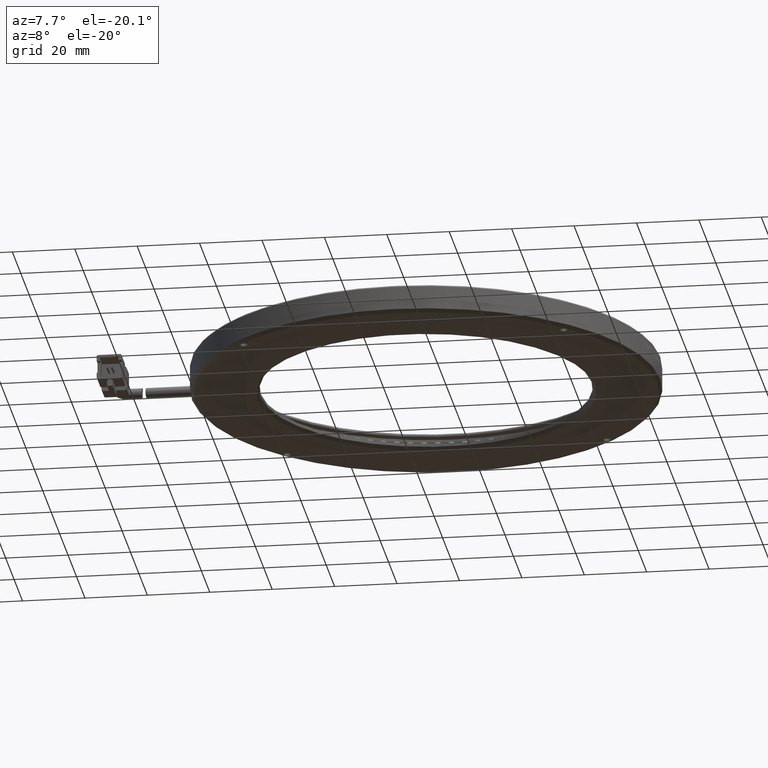
[diagram: clean part render]
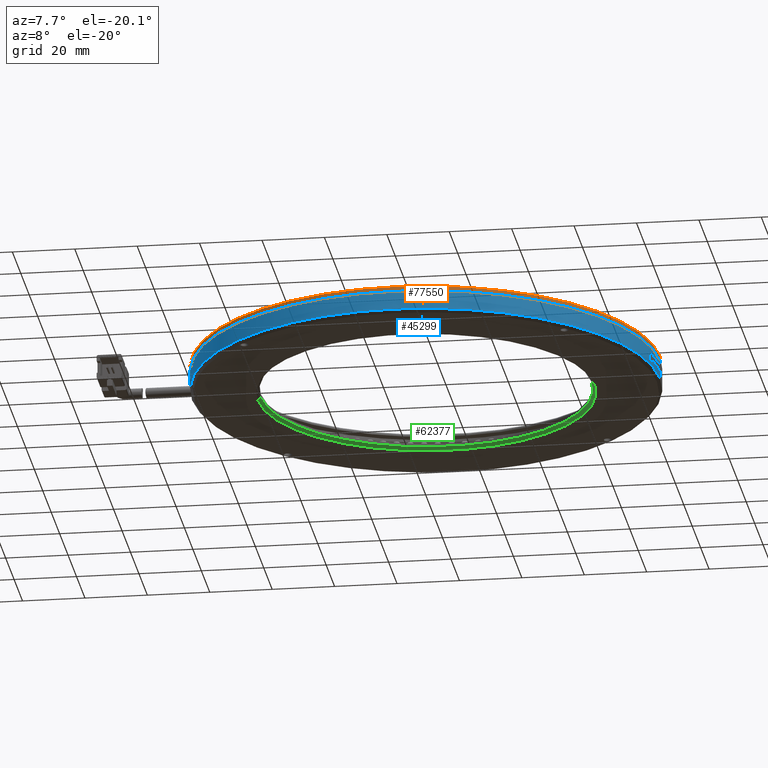
[diagram: same view with three faces highlighted in distinct colors, each labeled with its STEP entity id]
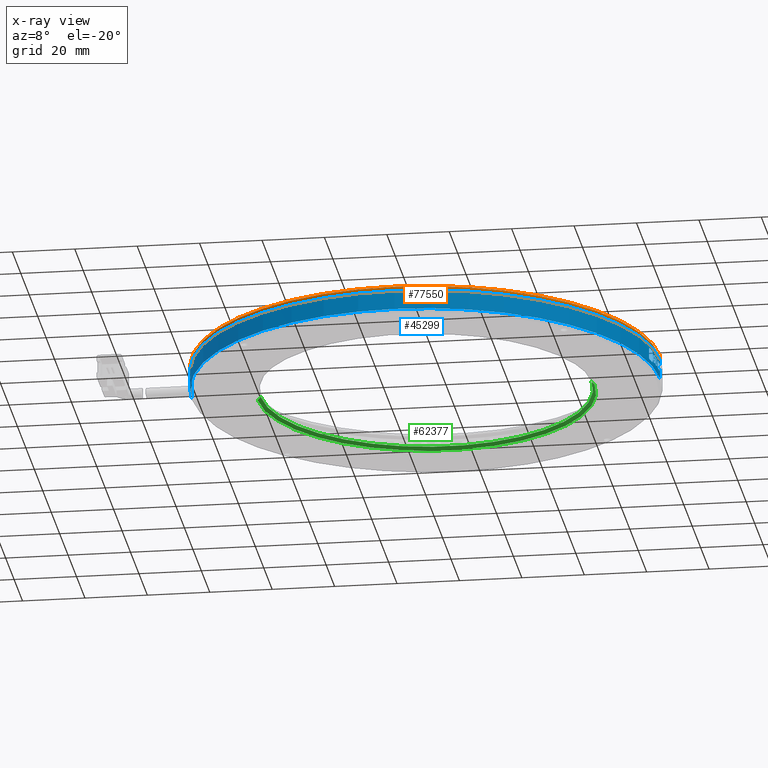
[diagram: x-ray of the same camera — body ghosted, the three highlighted faces saturated]
A machine part, auxiliary view with three faces highlighted in distinct colors.
The next image is the same camera in x-ray (body ghosted, the three faces saturated) — at least one of them is partly hidden behind the body in this view.
Their STEP definitions:

[orange] entity #77550 — the highlighted cylindrical surface (partial cylindrical patch) has radius 75 mm, axis along (-0, 0, 1).
#567 = CARTESIAN_POINT ( 'NONE',  ( 85.82239847715739200, 1.095939086294428300, 4.999999999999978700 ) ) ;
#1658 = ORIENTED_EDGE ( 'NONE', *, *, #3551, .F. ) ;
#2667 = CYLINDRICAL_SURFACE ( 'NONE', #28252, 75.00000000000004300 ) ;
#3551 = EDGE_CURVE ( 'NONE', #26996, #12276, #22921, .T. ) ;
#5786 = CARTESIAN_POINT ( 'NONE',  ( 10.82239847715735900, 1.095939086294427800, 3.499999999999937400 ) ) ;
#6270 = ORIENTED_EDGE ( 'NONE', *, *, #11859, .F. ) ;
#7104 = CARTESIAN_POINT ( 'NONE',  ( 10.82239847715735900, 1.095939086294427800, 3.499999999999937400 ) ) ;
#7539 = ORIENTED_EDGE ( 'NONE', *, *, #77383, .T. ) ;
#11859 = EDGE_CURVE ( 'NONE', #12387, #26996, #66456, .T. ) ;
#11871 = DIRECTION ( 'NONE',  ( 1.000000000000000000, 5.782411586589353400E-018, 0.0000000000000000000 ) ) ;
#12276 = VERTEX_POINT ( 'NONE', #567 ) ;
#12387 = VERTEX_POINT ( 'NONE', #75491 ) ;
#13494 = LINE ( 'NONE', #28376, #45890 ) ;
#16576 = CARTESIAN_POINT ( 'NONE',  ( 10.82239847715735900, 1.095939086294427800, 4.999999999999978700 ) ) ;
#21648 = AXIS2_PLACEMENT_3D ( 'NONE', #5786, #48352, #11871 ) ;
#22730 = DIRECTION ( 'NONE',  ( -1.000000000000000000, -5.782411586589355700E-018, 0.0000000000000000000 ) ) ;
#22921 = CIRCLE ( 'NONE', #59749, 75.00000000000001400 ) ;
#23464 = ORIENTED_EDGE ( 'NONE', *, *, #66504, .T. ) ;
#26062 = CARTESIAN_POINT ( 'NONE',  ( 85.82239847715739200, 1.095939086294428300, 3.499999999999937400 ) ) ;
#26452 = CARTESIAN_POINT ( 'NONE',  ( -64.17760152284269300, 1.095939086294436500, 3.499999999999937400 ) ) ;
#26996 = VERTEX_POINT ( 'NONE', #31235 ) ;
#28252 = AXIS2_PLACEMENT_3D ( 'NONE', #7104, #49658, #74096 ) ;
#28376 = CARTESIAN_POINT ( 'NONE',  ( 85.82239847715739200, 1.095939086294428300, 3.499999999999937400 ) ) ;
#31235 = CARTESIAN_POINT ( 'NONE',  ( -64.17760152284266400, 1.095939086294436500, 4.999999999999978700 ) ) ;
#34749 = EDGE_LOOP ( 'NONE', ( #6270, #7539, #23464, #1658 ) ) ;
#44826 = DIRECTION ( 'NONE',  ( -0.0000000000000000000, 0.0000000000000000000, 1.000000000000000000 ) ) ;
#45890 = VECTOR ( 'NONE', #64583, 1000.000000000000000 ) ;
#48352 = DIRECTION ( 'NONE',  ( -0.0000000000000000000, 0.0000000000000000000, 1.000000000000000000 ) ) ;
#48412 = VECTOR ( 'NONE', #44826, 1000.000000000000000 ) ;
#49658 = DIRECTION ( 'NONE',  ( -0.0000000000000000000, 0.0000000000000000000, 1.000000000000000000 ) ) ;
#59157 = DIRECTION ( 'NONE',  ( -0.0000000000000000000, -0.0000000000000000000, 1.000000000000000000 ) ) ;
#59749 = AXIS2_PLACEMENT_3D ( 'NONE', #16576, #59157, #22730 ) ;
#64583 = DIRECTION ( 'NONE',  ( -0.0000000000000000000, 0.0000000000000000000, 1.000000000000000000 ) ) ;
#66456 = LINE ( 'NONE', #26452, #48412 ) ;
#66504 = EDGE_CURVE ( 'NONE', #67961, #12276, #13494, .T. ) ;
#67961 = VERTEX_POINT ( 'NONE', #26062 ) ;
#73107 = FACE_OUTER_BOUND ( 'NONE', #34749, .T. ) ;
#74096 = DIRECTION ( 'NONE',  ( 1.000000000000000000, 5.782411586589353400E-018, 0.0000000000000000000 ) ) ;
#74103 = CIRCLE ( 'NONE', #21648, 75.00000000000004300 ) ;
#75491 = CARTESIAN_POINT ( 'NONE',  ( -64.17760152284269300, 1.095939086294436500, 3.499999999999937400 ) ) ;
#77383 = EDGE_CURVE ( 'NONE', #12387, #67961, #74103, .T. ) ;
#77550 = ADVANCED_FACE ( 'NONE', ( #73107 ), #2667, .T. ) ;

[blue] entity #45299 — the highlighted cylindrical surface (partial cylindrical patch) has radius 75 mm, axis along (-0, -0, -1).
#171 = CARTESIAN_POINT ( 'NONE',  ( 84.29269495348449900, -13.97441378550632900, -0.5044299926477581200 ) ) ;
#223 = CARTESIAN_POINT ( 'NONE',  ( 84.95984298114734700, -10.24598854607059900, 1.864478666339576500 ) ) ;
#283 = AXIS2_PLACEMENT_3D ( 'NONE', #46690, #10221, #52778 ) ;
#420 = EDGE_CURVE ( 'NONE', #27125, #49415, #27709, .T. ) ;
#478 = CARTESIAN_POINT ( 'NONE',  ( 85.66489476889145700, -3.762316406412186800, 1.249962106869142400 ) ) ;
#479 = CARTESIAN_POINT ( 'NONE',  ( 85.43683457279243500, -6.499328964406531700, -0.07883554273179543800 ) ) ;
#536 = CARTESIAN_POINT ( 'NONE',  ( 85.30094370956017300, -7.733310517213367600, 1.676917082473078800 ) ) ;
#543 = LINE ( 'NONE', #60597, #16714 ) ;
#677 = CARTESIAN_POINT ( 'NONE',  ( 85.24980921924067400, -8.154084756496262200, -0.2735540349924263600 ) ) ;
#730 = ORIENTED_EDGE ( 'NONE', *, *, #44883, .F. ) ;
#747 = DIRECTION ( 'NONE',  ( -0.0000000000000000000, -6.663212063528520500E-015, 1.000000000000000000 ) ) ;
#759 = CARTESIAN_POINT ( 'NONE',  ( 85.12242608258272000, -9.126873532208833200, 0.6254529725738690000 ) ) ;
#813 = CARTESIAN_POINT ( 'NONE',  ( -64.17254035220457800, 0.2194706166854303600, 2.019005894296307200 ) ) ;
#840 = CARTESIAN_POINT ( 'NONE',  ( 85.29904359394902300, -7.749309263446059900, -0.5091986706108977400 ) ) ;
#1069 = CARTESIAN_POINT ( 'NONE',  ( -64.16470531755148000, -0.2962797748858557700, -0.5664088657553876200 ) ) ;
#1250 = CARTESIAN_POINT ( 'NONE',  ( 85.13545531322400000, -9.031876421992965500, 0.09105442434919772100 ) ) ;
#1402 = EDGE_CURVE ( 'NONE', #36940, #44424, #11293, .T. ) ;
#1578 = ORIENTED_EDGE ( 'NONE', *, *, #52704, .T. ) ;
#1600 = CARTESIAN_POINT ( 'NONE',  ( 84.85266122199919900, -10.92571628764158700, 2.544233606038094600 ) ) ;
#1644 = EDGE_CURVE ( 'NONE', #47234, #74824, #56996, .T. ) ;
#1799 = VERTEX_POINT ( 'NONE', #223 ) ;
#1800 = VECTOR ( 'NONE', #56221, 1000.000000000000000 ) ;
#1970 = AXIS2_PLACEMENT_3D ( 'NONE', #11142, #53700, #17265 ) ;
#2079 = DIRECTION ( 'NONE',  ( -7.727614844318015000E-014, 1.000000000000000000, 6.878178582248038600E-015 ) ) ;
#2193 = ORIENTED_EDGE ( 'NONE', *, *, #39861, .F. ) ;
#2305 = DIRECTION ( 'NONE',  ( -0.0000000000000000000, -7.575289211764191400E-015, 1.000000000000000000 ) ) ;
#2649 = FACE_BOUND ( 'NONE', #63124, .T. ) ;
#2732 = EDGE_CURVE ( 'NONE', #71567, #67965, #543, .T. ) ;
#2963 = CARTESIAN_POINT ( 'NONE',  ( 85.77122898921751900, -1.674415012901318000, -0.01304883365896653500 ) ) ;
#3025 = VERTEX_POINT ( 'NONE', #45130 ) ;
#3162 = DIRECTION ( 'NONE',  ( -0.0000000000000000000, -7.335628832662074100E-015, 1.000000000000000000 ) ) ;
#3165 = DIRECTION ( 'NONE',  ( -0.0000000000000000000, -0.0000000000000000000, -1.000000000000000000 ) ) ;
#3227 = CARTESIAN_POINT ( 'NONE',  ( 85.71723957255368000, -2.877594028380334700, -0.6550537591460945400 ) ) ;
#3239 = ORIENTED_EDGE ( 'NONE', *, *, #62551, .T. ) ;
#3539 = CARTESIAN_POINT ( 'NONE',  ( 85.56119786874039300, -5.158211116175016800, -0.3413345464288040600 ) ) ;
#3799 = ORIENTED_EDGE ( 'NONE', *, *, #78233, .T. ) ;
#3869 = CARTESIAN_POINT ( 'NONE',  ( 84.29501102964029300, -13.96314201506691300, 1.928587409456829800 ) ) ;
#4020 = B_SPLINE_CURVE_WITH_KNOTS ( 'NONE', 3,
 ( #76079, #3227, #45810, #9333, #51893, #15445, #58036, #21604, #64126, #27679, #70246, #33765 ),
 .UNSPECIFIED., .F., .F.,
 ( 4, 2, 2, 2, 2, 4 ),
 ( 0.0000000000000000000, 0.0004812107470553758200, 0.0007218161205830637300, 0.0009624214941107516400, 0.001443632241166129200, 0.001924842988221506800 ),
 .UNSPECIFIED. ) ;
#4134 = ORIENTED_EDGE ( 'NONE', *, *, #53898, .T. ) ;
#4331 = EDGE_CURVE ( 'NONE', #10813, #69336, #67318, .T. ) ;
#4491 = CARTESIAN_POINT ( 'NONE',  ( 84.94334007279151400, -10.35353058597662300, -0.9488275480649475100 ) ) ;
#4571 = CARTESIAN_POINT ( 'NONE',  ( 85.05263743725051000, -9.621973081681341400, 0.9598317408435508300 ) ) ;
#4602 = FACE_BOUND ( 'NONE', #43400, .T. ) ;
#4620 = CARTESIAN_POINT ( 'NONE',  ( 85.53146008865044800, -5.503766447297857100, 1.881266926062233200 ) ) ;
#4628 = CARTESIAN_POINT ( 'NONE',  ( 85.45315862731004600, -6.338421804681795300, -0.6599289347827992400 ) ) ;
#4651 = AXIS2_PLACEMENT_3D ( 'NONE', #39549, #3162, #45755 ) ;
#4673 = CARTESIAN_POINT ( 'NONE',  ( 85.19416152748284800, -8.591787798563524700, 1.557244951735952800 ) ) ;
#4804 = CARTESIAN_POINT ( 'NONE',  ( 85.51813702008145400, -5.653050125548596800, -0.2207362083010869500 ) ) ;
#5135 = CARTESIAN_POINT ( 'NONE',  ( 85.76222622608440800, -1.908201801509803700, 1.587087957760302500 ) ) ;
#5399 = CARTESIAN_POINT ( 'NONE',  ( 85.81458641604223200, 0.007803215296779538100, 0.2574559625122770900 ) ) ;
#5642 = DIRECTION ( 'NONE',  ( -0.0000000000000000000, -0.0000000000000000000, -1.000000000000000000 ) ) ;
#6051 = CARTESIAN_POINT ( 'NONE',  ( 84.41105198197999500, -13.38572837421566500, -1.184191727585528900 ) ) ;
#6281 = CARTESIAN_POINT ( 'NONE',  ( 85.13744195990230400, -9.017443000698101200, -0.5449525215475955500 ) ) ;
#6637 = CARTESIAN_POINT ( 'NONE',  ( 85.68234505687151200, -3.486537606137698000, 1.659290943583005000 ) ) ;
#6638 = CARTESIAN_POINT ( 'NONE',  ( 85.45271820299794300, -6.341858205103986500, -0.2583123487092606800 ) ) ;
#6700 = CARTESIAN_POINT ( 'NONE',  ( 85.32595410380287100, -7.519429498712943500, 1.400999174912653100 ) ) ;
#6818 = CARTESIAN_POINT ( 'NONE',  ( 85.26680848937563400, -8.016187526569817500, -0.1585342199954782300 ) ) ;
#6864 = VERTEX_POINT ( 'NONE', #46443 ) ;
#6949 = CARTESIAN_POINT ( 'NONE',  ( -64.16872406090021700, -0.06080507990462901600, 1.818132394840992000 ) ) ;
#6980 = CARTESIAN_POINT ( 'NONE',  ( 85.26398354726256900, -8.039770225564396400, -0.6240117307573898000 ) ) ;
#7144 = CARTESIAN_POINT ( 'NONE',  ( 85.27948513028692900, -7.911960065469779500, 3.499999999999862800 ) ) ;
#7201 = CARTESIAN_POINT ( 'NONE',  ( -64.16872510365769200, -0.06079972831420470100, -0.8182535258995933300 ) ) ;
#7404 = CARTESIAN_POINT ( 'NONE',  ( 85.16052710156996900, -8.846474300600734300, -0.1782175950982712300 ) ) ;
#7633 = EDGE_CURVE ( 'NONE', #57359, #10813, #70003, .T. ) ;
#7694 = EDGE_CURVE ( 'NONE', #64076, #1799, #29091, .T. ) ;
#8253 = ORIENTED_EDGE ( 'NONE', *, *, #1644, .T. ) ;
#8439 = DIRECTION ( 'NONE',  ( 0.0000000000000000000, 0.0000000000000000000, 1.000000000000000000 ) ) ;
#8537 = EDGE_CURVE ( 'NONE', #70473, #34159, #76103, .T. ) ;
#8579 = EDGE_CURVE ( 'NONE', #42742, #36373, #69839, .T. ) ;
#8675 = EDGE_CURVE ( 'NONE', #57058, #58135, #32643, .T. ) ;
#8990 = LINE ( 'NONE', #23823, #71812 ) ;
#9062 = CARTESIAN_POINT ( 'NONE',  ( 85.76032910615960200, -1.956538486376427200, -0.4103181488990444400 ) ) ;
#9092 = DIRECTION ( 'NONE',  ( -0.0000000000000000000, -0.0000000000000000000, -1.000000000000000000 ) ) ;
#9314 = CARTESIAN_POINT ( 'NONE',  ( 85.33567663962094200, -7.434675046540792000, 1.183592507457587000 ) ) ;
#9333 = CARTESIAN_POINT ( 'NONE',  ( 85.69573988204149400, -3.261635341824229400, -0.5359464341565410800 ) ) ;
#9362 = VECTOR ( 'NONE', #70454, 1000.000000000000000 ) ;
#9573 = B_SPLINE_CURVE_WITH_KNOTS ( 'NONE', 3,
 ( #33256, #33002, #39348, #2963, #45542, #9062, #51630, #15191, #57760, #21339 ),
 .UNSPECIFIED., .F., .F.,
 ( 4, 2, 2, 2, 4 ),
 ( 0.0000000000000000000, 0.0004784595827175902500, 0.0009569191654351805100, 0.001435378748152770800, 0.001913838330870361000 ),
 .UNSPECIFIED. ) ;
#9629 = CARTESIAN_POINT ( 'NONE',  ( 85.54759765041899300, -5.318805977973583200, -0.5026407656867991600 ) ) ;
#9669 = ORIENTED_EDGE ( 'NONE', *, *, #33851, .T. ) ;
#9790 = CIRCLE ( 'NONE', #39527, 75.00000000000001400 ) ;
#9825 = CARTESIAN_POINT ( 'NONE',  ( 85.80041024745831600, -0.7200319962432520900, 0.2533599493180684900 ) ) ;
#9875 = CIRCLE ( 'NONE', #73585, 75.00000000000001400 ) ;
#9939 = CARTESIAN_POINT ( 'NONE',  ( 84.31418315784573300, -13.86939789488607900, 2.215213328318723200 ) ) ;
#10051 = EDGE_CURVE ( 'NONE', #63339, #64076, #69240, .T. ) ;
#10102 = B_SPLINE_CURVE_WITH_KNOTS ( 'NONE', 3,
 ( #759, #55786, #74130, #37683, #1250, #43836, #7404, #49936, #13490, #56062 ),
 .UNSPECIFIED., .F., .F.,
 ( 4, 2, 2, 2, 4 ),
 ( 0.0000000000000000000, 0.0003250031973688801700, 0.0006500063947377603400, 0.0009750095921066404000, 0.001300012789475520500 ),
 .UNSPECIFIED. ) ;
#10221 = DIRECTION ( 'NONE',  ( -0.0000000000000000000, -6.663212063528497600E-015, 1.000000000000000000 ) ) ;
#10250 = VERTEX_POINT ( 'NONE', #62371 ) ;
#10347 = EDGE_CURVE ( 'NONE', #38026, #55854, #77797, .T. ) ;
#10472 = ORIENTED_EDGE ( 'NONE', *, *, #73330, .T. ) ;
#10546 = CARTESIAN_POINT ( 'NONE',  ( 84.91006955355624100, -10.56702886059692400, -1.122721883547756600 ) ) ;
#10609 = EDGE_CURVE ( 'NONE', #68951, #48432, #61595, .T. ) ;
#10625 = CARTESIAN_POINT ( 'NONE',  ( 85.07569638435559500, -9.461484461295524900, 1.420367464178278900 ) ) ;
#10689 = CARTESIAN_POINT ( 'NONE',  ( 85.41033127758919400, -6.755817851422925500, -0.5040358477651809600 ) ) ;
#10813 = VERTEX_POINT ( 'NONE', #16647 ) ;
#10841 = CARTESIAN_POINT ( 'NONE',  ( 85.52885474092244100, -5.533208846143681500, -0.009063415563392567000 ) ) ;
#11048 = CARTESIAN_POINT ( 'NONE',  ( 10.82239847715735200, 1.095939086294420100, 1.183592507457641700 ) ) ;
#11142 = CARTESIAN_POINT ( 'NONE',  ( 10.82239847715735200, 1.095939086294420100, 0.2533599493180810300 ) ) ;
#11200 = CARTESIAN_POINT ( 'NONE',  ( -64.17760152284266400, 1.095939086294413800, 2.249999999999931600 ) ) ;
#11202 = CYLINDRICAL_SURFACE ( 'NONE', #52776, 75.00000000000001400 ) ;
#11218 = CARTESIAN_POINT ( 'NONE',  ( 85.77093401188852800, -1.682404599520654700, 1.248857339273203200 ) ) ;
#11293 = B_SPLINE_CURVE_WITH_KNOTS ( 'NONE', 3,
 ( #34729, #28637, #65090, #40835, #4491, #47028, #10546, #53145, #16671, #59250 ),
 .UNSPECIFIED., .F., .F.,
 ( 4, 2, 2, 2, 4 ),
 ( 0.0000000000000000000, 0.0002738867319972512100, 0.0005477734639945024200, 0.0008216601959917536300, 0.001095546927989004800 ),
 .UNSPECIFIED. ) ;
#11298 = ORIENTED_EDGE ( 'NONE', *, *, #77408, .T. ) ;
#11429 = LINE ( 'NONE', #50833, #49544 ) ;
#11480 = CARTESIAN_POINT ( 'NONE',  ( 85.81083458653341700, -0.2210460578981488500, 0.2533599493180718800 ) ) ;
#11652 = ORIENTED_EDGE ( 'NONE', *, *, #10347, .T. ) ;
#11790 = CARTESIAN_POINT ( 'NONE',  ( 85.81737844848629500, 0.2213802100556430700, 1.813171652358604100 ) ) ;
#11903 = AXIS2_PLACEMENT_3D ( 'NONE', #59918, #23455, #66000 ) ;
#12146 = EDGE_CURVE ( 'NONE', #25397, #47234, #22676, .T. ) ;
#12374 = CARTESIAN_POINT ( 'NONE',  ( 85.10841785466354300, -9.228407172086837900, -0.4146928356259299600 ) ) ;
#12479 = ORIENTED_EDGE ( 'NONE', *, *, #8579, .T. ) ;
#12484 = CARTESIAN_POINT ( 'NONE',  ( 85.22257479628089500, -8.371233476541830100, 1.916150646992459000 ) ) ;
#12568 = ORIENTED_EDGE ( 'NONE', *, *, #25252, .T. ) ;
#12692 = CARTESIAN_POINT ( 'NONE',  ( 85.70818146017229800, -3.044437054332092000, 1.881823360458909900 ) ) ;
#12693 = CARTESIAN_POINT ( 'NONE',  ( 85.47498599887585200, -6.114995638987085000, -0.3280353995191342400 ) ) ;
#12748 = CARTESIAN_POINT ( 'NONE',  ( 85.33567663962094200, -7.434675046540792000, 1.183592507457587000 ) ) ;
#12872 = CARTESIAN_POINT ( 'NONE',  ( 85.27738007209050900, -7.929359960595196100, -0.001912848778741069400 ) ) ;
#12963 = ORIENTED_EDGE ( 'NONE', *, *, #48097, .T. ) ;
#13009 = CARTESIAN_POINT ( 'NONE',  ( 85.27948513028692900, -7.911960065469755500, 0.4742901818761657300 ) ) ;
#13020 = CARTESIAN_POINT ( 'NONE',  ( -64.16205956965423200, -0.4333336209045649000, 1.380780430086843100 ) ) ;
#13052 = CARTESIAN_POINT ( 'NONE',  ( 85.22529159919672300, -8.349726937434178700, -0.6652447018447676900 ) ) ;
#13072 = DIRECTION ( 'NONE',  ( -0.0000000000000000000, 6.757381405368177900E-015, -1.000000000000000000 ) ) ;
#13191 = ORIENTED_EDGE ( 'NONE', *, *, #420, .T. ) ;
#13293 = CARTESIAN_POINT ( 'NONE',  ( -64.17251315748760000, 0.2171883964074632600, -1.017659390864424500 ) ) ;
#13490 = CARTESIAN_POINT ( 'NONE',  ( 85.19931252816553500, -8.552204532308735500, -0.3183354626710876400 ) ) ;
#13794 = VERTEX_POINT ( 'NONE', #43914 ) ;
#13805 = CARTESIAN_POINT ( 'NONE',  ( 84.88190146822539400, -10.74457610723387700, 2.535218796744831400 ) ) ;
#13866 = CARTESIAN_POINT ( 'NONE',  ( 85.57562939020147000, -4.983079589536897600, 0.4626622748994564400 ) ) ;
#14996 = DIRECTION ( 'NONE',  ( -0.0000000000000000000, -0.0000000000000000000, -1.000000000000000000 ) ) ;
#14998 = DIRECTION ( 'NONE',  ( -0.0000000000000000000, 7.322880572951427900E-015, -1.000000000000000000 ) ) ;
#15191 = CARTESIAN_POINT ( 'NONE',  ( 85.74134712344212500, -2.393126862660599500, -0.6257974169150629700 ) ) ;
#15445 = CARTESIAN_POINT ( 'NONE',  ( 85.68363027039403300, -3.464799943011957600, -0.4058458037208427200 ) ) ;
#15469 = CARTESIAN_POINT ( 'NONE',  ( 84.42886333274390200, -13.29462488678540700, -1.184191727585531600 ) ) ;
#15731 = CARTESIAN_POINT ( 'NONE',  ( 85.52988957885926900, -5.521928971155786800, -0.6067715644504890800 ) ) ;
#15888 = AXIS2_PLACEMENT_3D ( 'NONE', #38731, #2305, #44904 ) ;
#16058 = CARTESIAN_POINT ( 'NONE',  ( 84.35424791183868400, -13.67143568384262400, 2.441667129815850800 ) ) ;
#16211 = B_SPLINE_CURVE_WITH_KNOTS ( 'NONE', 3,
 ( #58063, #51924, #70272, #33792, #76370, #39907, #3539, #46084, #9629, #52207, #15731, #58311, #21891, #64436 ),
 .UNSPECIFIED., .F., .F.,
 ( 4, 2, 2, 2, 2, 2, 4 ),
 ( 2.059984127722458400E-018, 0.0004537336852917527600, 0.0006806005279376278100, 0.0009074673705835029200, 0.001134334213229378000, 0.001361201055875253000, 0.001814934741166997400 ),
 .UNSPECIFIED. ) ;
#16522 = B_SPLINE_CURVE_WITH_KNOTS ( 'NONE', 3,
 ( #53340, #4673, #59426, #23009, #65542, #29065, #71648, #35187, #77753, #41285 ),
 .UNSPECIFIED., .F., .F.,
 ( 4, 2, 2, 2, 4 ),
 ( 0.0000000000000000000, 0.0003154149640528861600, 0.0006308299281057723200, 0.0009462448921586583100, 0.001261659856211544900 ),
 .UNSPECIFIED. ) ;
#16647 = CARTESIAN_POINT ( 'NONE',  ( -64.17760152284266400, 1.095939086294420100, -1.250000000000064400 ) ) ;
#16671 = CARTESIAN_POINT ( 'NONE',  ( 84.86755676487376800, -10.83398840837440100, -1.184191727585524700 ) ) ;
#16714 = VECTOR ( 'NONE', #72783, 1000.000000000000000 ) ;
#16763 = CARTESIAN_POINT ( 'NONE',  ( 85.12473126071773800, -9.111231115412950400, 1.762478863472281700 ) ) ;
#16826 = CARTESIAN_POINT ( 'NONE',  ( 85.39015166849733900, -6.944659163647852300, -0.2770961303331958000 ) ) ;
#16995 = CARTESIAN_POINT ( 'NONE',  ( 85.53169343704439600, -5.501124929513296500, 0.2304433328410902800 ) ) ;
#17180 = DIRECTION ( 'NONE',  ( 1.465494392505206400E-013, -1.000000000000000000, -6.398238420561122200E-015 ) ) ;
#17265 = DIRECTION ( 'NONE',  ( 0.0000000000000000000, -1.000000000000000000, -6.953349932873700500E-015 ) ) ;
#17332 = CARTESIAN_POINT ( 'NONE',  ( 85.77516856345195600, -1.565330821246214900, 0.7766759441732018500 ) ) ;
#17418 = EDGE_CURVE ( 'NONE', #68071, #47742, #56022, .T. ) ;
#17441 = CARTESIAN_POINT ( 'NONE',  ( 10.82239847715735200, 1.095939086294420100, 2.544233606038143900 ) ) ;
#17925 = CARTESIAN_POINT ( 'NONE',  ( 85.82001224449376800, 0.4920033262686815400, 1.610664512973029300 ) ) ;
#18146 = CARTESIAN_POINT ( 'NONE',  ( 85.20767832337155300, -8.486865419715409000, 1.567313437690169600 ) ) ;
#18261 = CARTESIAN_POINT ( 'NONE',  ( 84.39336020538765100, -13.47531460175837000, -1.175209340911267800 ) ) ;
#18356 = ORIENTED_EDGE ( 'NONE', *, *, #42536, .T. ) ;
#18379 = VERTEX_POINT ( 'NONE', #27739 ) ;
#18494 = CARTESIAN_POINT ( 'NONE',  ( 85.08439717377525800, -9.399704403628820900, -0.2336877264247555500 ) ) ;
#18637 = EDGE_LOOP ( 'NONE', ( #61754, #25959, #68136, #73583, #11652, #12963, #62591, #10472, #43703, #62472 ) ) ;
#18766 = CARTESIAN_POINT ( 'NONE',  ( 85.22837841027974500, -8.324970120219450800, -0.3253341393007984600 ) ) ;
#18860 = CARTESIAN_POINT ( 'NONE',  ( 85.72546453779141000, -2.715975749623428500, 1.916150646992497800 ) ) ;
#18863 = FACE_BOUND ( 'NONE', #75364, .T. ) ;
#18924 = ORIENTED_EDGE ( 'NONE', *, *, #58598, .T. ) ;
#19154 = AXIS2_PLACEMENT_3D ( 'NONE', #74949, #38478, #2079 ) ;
#19197 = CARTESIAN_POINT ( 'NONE',  ( -64.15718569520917900, -0.6539058676754254700, 0.7294260676648236500 ) ) ;
#19224 = EDGE_CURVE ( 'NONE', #53095, #39465, #28231, .T. ) ;
#19434 = CARTESIAN_POINT ( 'NONE',  ( -64.17649974751834900, 0.6374368434604580400, -1.204396376914511200 ) ) ;
#19447 = EDGE_CURVE ( 'NONE', #68425, #13794, #20092, .T. ) ;
#19755 = VERTEX_POINT ( 'NONE', #25243 ) ;
#19978 = CARTESIAN_POINT ( 'NONE',  ( 84.92277574582111300, -10.48587833668098700, 2.439866892567510400 ) ) ;
#20092 = B_SPLINE_CURVE_WITH_KNOTS ( 'NONE', 3,
 ( #34827, #71304, #4571, #47112, #10625, #53235, #16763, #59336, #22915, #65440 ),
 .UNSPECIFIED., .F., .F.,
 ( 4, 2, 2, 2, 4 ),
 ( 1.626303258728256800E-018, 0.0004820473545756445000, 0.0009640947091512873600, 0.001446142063726930300, 0.001928189418302573200 ),
 .UNSPECIFIED. ) ;
#20626 = DIRECTION ( 'NONE',  ( -0.0000000000000000000, -0.0000000000000000000, -1.000000000000000000 ) ) ;
#20814 = VERTEX_POINT ( 'NONE', #73718 ) ;
#21339 = CARTESIAN_POINT ( 'NONE',  ( 85.72546453779142400, -2.715975749623410700, -0.6652447018447252800 ) ) ;
#21594 = DIRECTION ( 'NONE',  ( -0.0000000000000000000, -0.0000000000000000000, -1.000000000000000000 ) ) ;
#21604 = CARTESIAN_POINT ( 'NONE',  ( 85.67008994266102200, -3.682559262500830300, -0.1673545586047974500 ) ) ;
#21722 = VECTOR ( 'NONE', #14996, 1000.000000000000000 ) ;
#21872 = CARTESIAN_POINT ( 'NONE',  ( 85.72546453779141000, -2.715975749623428500, 1.916150646992497800 ) ) ;
#21891 = CARTESIAN_POINT ( 'NONE',  ( 85.49609889360229400, -5.894180615965486100, -0.6731427493094686000 ) ) ;
#22121 = CARTESIAN_POINT ( 'NONE',  ( 85.73373598826819400, -2.553444048851475600, 1.905696102290639800 ) ) ;
#22187 = CARTESIAN_POINT ( 'NONE',  ( 84.40943374070201300, -13.39400553555405800, 2.544233606038091500 ) ) ;
#22676 = B_SPLINE_CURVE_WITH_KNOTS ( 'NONE', 3,
 ( #29533, #23458, #47448, #72123, #35650, #78225, #41794, #5399, #47947, #11480 ),
 .UNSPECIFIED., .F., .F.,
 ( 4, 2, 2, 2, 4 ),
 ( 0.0000000000000000000, 0.0003367255122654029100, 0.0006734510245308058100, 0.001010176536796208800, 0.001346902049061611600 ),
 .UNSPECIFIED. ) ;
#22749 = ORIENTED_EDGE ( 'NONE', *, *, #44676, .T. ) ;
#22915 = CARTESIAN_POINT ( 'NONE',  ( 85.18674703587593900, -8.649341830136611600, 1.907672206481323900 ) ) ;
#22965 = CARTESIAN_POINT ( 'NONE',  ( 85.38067344725627100, -7.032032921610347200, -0.07405617956982062100 ) ) ;
#23009 = CARTESIAN_POINT ( 'NONE',  ( 85.15743038629266000, -8.869540341967422100, 1.413170103098337000 ) ) ;
#23214 = VECTOR ( 'NONE', #49695, 1000.000000000000000 ) ;
#23455 = DIRECTION ( 'NONE',  ( 0.0000000000000000000, 0.0000000000000000000, 1.000000000000000000 ) ) ;
#23458 = CARTESIAN_POINT ( 'NONE',  ( 85.82093888729608000, 0.6280235251249307600, 0.9534915652330515600 ) ) ;
#23570 = DIRECTION ( 'NONE',  ( 9.413766062967471500E-014, 1.000000000000000000, 4.394632805807910800E-015 ) ) ;
#23823 = CARTESIAN_POINT ( 'NONE',  ( 85.37460077480653800, -7.087527939996651800, 3.499999999999897900 ) ) ;
#24042 = CARTESIAN_POINT ( 'NONE',  ( 85.82087323973534900, 0.6164804083204700200, 1.292438241572390700 ) ) ;
#24375 = CARTESIAN_POINT ( 'NONE',  ( 84.34177150448557800, -13.73329886310675000, -1.080636225444736800 ) ) ;
#24462 = ORIENTED_EDGE ( 'NONE', *, *, #52413, .T. ) ;
#24538 = VERTEX_POINT ( 'NONE', #9314 ) ;
#24563 = ORIENTED_EDGE ( 'NONE', *, *, #39849, .T. ) ;
#24620 = CARTESIAN_POINT ( 'NONE',  ( 85.06699240344293900, -9.522052103183044700, -0.01496078912786971500 ) ) ;
#24698 = CARTESIAN_POINT ( 'NONE',  ( 85.42991686564676000, -6.566841082235678000, 0.2318314397783843300 ) ) ;
#24778 = CARTESIAN_POINT ( 'NONE',  ( 85.33692191335711600, -7.423790784777581000, -0.1071051669609968100 ) ) ;
#24880 = DIRECTION ( 'NONE',  ( 0.0000000000000000000, 0.0000000000000000000, -1.000000000000000000 ) ) ;
#25005 = CARTESIAN_POINT ( 'NONE',  ( -64.17760152284267900, 0.9803321335664875200, 2.249999999999931200 ) ) ;
#25045 = CARTESIAN_POINT ( 'NONE',  ( 85.33253263712718700, -7.462179892349508000, -0.2057944000650614200 ) ) ;
#25243 = CARTESIAN_POINT ( 'NONE',  ( 85.48156069546963900, -6.046154224474706000, -0.6652447018447496000 ) ) ;
#25252 = EDGE_CURVE ( 'NONE', #24538, #27125, #59219, .T. ) ;
#25273 = CARTESIAN_POINT ( 'NONE',  ( -64.15744734107639100, -0.6428014209420458400, 0.2711516273051495800 ) ) ;
#25387 = EDGE_CURVE ( 'NONE', #47438, #42742, #49604, .T. ) ;
#25397 = VERTEX_POINT ( 'NONE', #61604 ) ;
#25544 = CARTESIAN_POINT ( 'NONE',  ( -64.17760152284266400, 1.095939086294420100, -1.250000000000064400 ) ) ;
#25666 = CIRCLE ( 'NONE', #11903, 75.00000000000001400 ) ;
#25959 = ORIENTED_EDGE ( 'NONE', *, *, #68098, .T. ) ;
#26057 = CARTESIAN_POINT ( 'NONE',  ( 84.95016295373170600, -10.30911521007655700, 2.227213787587071000 ) ) ;
#26254 = CARTESIAN_POINT ( 'NONE',  ( 85.25929712948251900, -8.077340122797181700, 1.389984092182006400 ) ) ;
#26362 = CARTESIAN_POINT ( 'NONE',  ( 85.81083458653341700, -0.2210460578981488500, 0.2533599493180718800 ) ) ;
#26474 = DIRECTION ( 'NONE',  ( -0.0000000000000000000, -0.0000000000000000000, -1.000000000000000000 ) ) ;
#26751 = CARTESIAN_POINT ( 'NONE',  ( 85.78632831542179800, -1.229834592241113800, -0.6187330739377398000 ) ) ;
#27125 = VERTEX_POINT ( 'NONE', #62155 ) ;
#27679 = CARTESIAN_POINT ( 'NONE',  ( 85.65931365768176400, -3.847567509227372500, 0.2895456525628161700 ) ) ;
#27709 = B_SPLINE_CURVE_WITH_KNOTS ( 'NONE', 3,
 ( #62701, #56312, #50203, #26254, #68776, #32326, #74920, #38457 ),
 .UNSPECIFIED., .F., .F.,
 ( 4, 2, 2, 4 ),
 ( 0.0000000000000000000, 0.0001723636963473978500, 0.0003447273926947957000, 0.0006894547853895832700 ),
 .UNSPECIFIED. ) ;
#27739 = CARTESIAN_POINT ( 'NONE',  ( 85.77552405057097900, -1.555280779369136100, 0.6138250655971354600 ) ) ;
#27923 = B_SPLINE_CURVE_WITH_KNOTS ( 'NONE', 3,
 ( #59039, #59297, #77616, #41150, #4804, #47353, #10841, #53457, #16995, #59567 ),
 .UNSPECIFIED., .F., .F.,
 ( 4, 2, 2, 2, 4 ),
 ( 0.0000000000000000000, 0.0002419689999867401800, 0.0004839379999734803600, 0.0007259069999602205400, 0.0009678759999469607200 ),
 .UNSPECIFIED. ) ;
#28153 = CARTESIAN_POINT ( 'NONE',  ( 85.53146008865044800, -5.503766447297864200, 3.499999999999908100 ) ) ;
#28231 = B_SPLINE_CURVE_WITH_KNOTS ( 'NONE', 3,
 ( #73336, #24698, #55010, #36914, #479, #43040, #6638, #49185, #12693, #55288 ),
 .UNSPECIFIED., .F., .F.,
 ( 4, 2, 2, 2, 4 ),
 ( 0.0000000000000000000, 0.0002371364285329265300, 0.0004742728570658530500, 0.0007114092855987795200, 0.0009485457141317061000 ),
 .UNSPECIFIED. ) ;
#28339 = EDGE_CURVE ( 'NONE', #67965, #49906, #29540, .T. ) ;
#28447 = B_SPLINE_CURVE_WITH_KNOTS ( 'NONE', 3,
 ( #34131, #70582, #3869, #46419, #9939, #52528, #16058, #58631, #22187, #64740 ),
 .UNSPECIFIED., .F., .F.,
 ( 4, 2, 2, 2, 4 ),
 ( 0.0000000000000000000, 0.0002993955819687760600, 0.0005987911639375526500, 0.0008981867459063291400, 0.001197582327875105700 ),
 .UNSPECIFIED. ) ;
#28637 = CARTESIAN_POINT ( 'NONE',  ( 84.95984298114733200, -10.24598854607058700, -0.5969663664213044100 ) ) ;
#28871 = ORIENTED_EDGE ( 'NONE', *, *, #25387, .T. ) ;
#29019 = CARTESIAN_POINT ( 'NONE',  ( 85.37413535267056400, -7.091767982160365400, 0.2909521497992976800 ) ) ;
#29065 = CARTESIAN_POINT ( 'NONE',  ( 85.13428425847206400, -9.040440975012485200, 1.143739891209163200 ) ) ;
#29091 = B_SPLINE_CURVE_WITH_KNOTS ( 'NONE', 3,
 ( #1600, #38009, #13805, #56363, #19978, #62500, #26057, #68601, #32132, #74709 ),
 .UNSPECIFIED., .F., .F.,
 ( 4, 2, 2, 2, 4 ),
 ( 0.0000000000000000000, 0.0002736804628397907900, 0.0005473609256795815900, 0.0008210413885193723800, 0.001094721851359163200 ),
 .UNSPECIFIED. ) ;
#29178 = EDGE_CURVE ( 'NONE', #37273, #50705, #62049, .T. ) ;
#29363 = ORIENTED_EDGE ( 'NONE', *, *, #68064, .T. ) ;
#29533 = CARTESIAN_POINT ( 'NONE',  ( 85.82092045126417200, 0.6250869869910777900, 1.067313437690228000 ) ) ;
#29540 = CIRCLE ( 'NONE', #4651, 75.00000000000001400 ) ;
#30099 = CARTESIAN_POINT ( 'NONE',  ( 85.82092045126417200, 0.6250869869910777900, 1.067313437690228000 ) ) ;
#30393 = VERTEX_POINT ( 'NONE', #15469 ) ;
#30425 = CARTESIAN_POINT ( 'NONE',  ( 85.19055396809086700, -8.620308574783456000, -0.6585171868089954000 ) ) ;
#30453 = CARTESIAN_POINT ( 'NONE',  ( 84.30572028820125800, -13.91079838607045500, -0.8683075398024623400 ) ) ;
#30542 = EDGE_LOOP ( 'NONE', ( #730, #49471, #63973, #60490, #56076, #2193, #60604, #3239, #4134, #53960 ) ) ;
#30591 = VECTOR ( 'NONE', #26474, 1000.000000000000000 ) ;
#30682 = CARTESIAN_POINT ( 'NONE',  ( 85.05275188062370300, -9.621188867116954300, 0.3023244666287270300 ) ) ;
#30760 = CARTESIAN_POINT ( 'NONE',  ( 85.65784033877196200, -3.869611379789168000, 0.7775383009039942300 ) ) ;
#30818 = CARTESIAN_POINT ( 'NONE',  ( 85.23699226966734000, -8.257182256704897600, 1.905356559001218300 ) ) ;
#30937 = VERTEX_POINT ( 'NONE', #70169 ) ;
#31101 = CARTESIAN_POINT ( 'NONE',  ( -64.17631727402042000, 0.6430153595240090100, 2.194213056580268400 ) ) ;
#31318 = AXIS2_PLACEMENT_3D ( 'NONE', #61341, #24880, #67433 ) ;
#31368 = CARTESIAN_POINT ( 'NONE',  ( -64.15921619028435400, -0.5651987151054070900, -0.06236938070198809500 ) ) ;
#31461 = CARTESIAN_POINT ( 'NONE',  ( 84.29269495348449900, -13.97441378550632900, 3.499999999999843700 ) ) ;
#31612 = EDGE_CURVE ( 'NONE', #49415, #77675, #16522, .T. ) ;
#32132 = CARTESIAN_POINT ( 'NONE',  ( 84.95984298114733200, -10.24598854607058700, 1.957463866549426400 ) ) ;
#32259 = VECTOR ( 'NONE', #3165, 1000.000000000000000 ) ;
#32326 = CARTESIAN_POINT ( 'NONE',  ( 85.23741834851031700, -8.253573184174086900, 1.539672814820041100 ) ) ;
#32643 = CIRCLE ( 'NONE', #15888, 75.00000000000001400 ) ;
#32952 = ORIENTED_EDGE ( 'NONE', *, *, #12146, .T. ) ;
#33002 = CARTESIAN_POINT ( 'NONE',  ( 85.77526680104402600, -1.562553528169331200, 0.4522941997876001600 ) ) ;
#33256 = CARTESIAN_POINT ( 'NONE',  ( 85.77552405057097900, -1.555280779369136100, 0.6138250655971354600 ) ) ;
#33285 = CARTESIAN_POINT ( 'NONE',  ( 85.53146008865044800, -5.503766447297864200, 0.3114994842017965200 ) ) ;
#33344 = AXIS2_PLACEMENT_3D ( 'NONE', #17441, #60037, #23570 ) ;
#33400 = CARTESIAN_POINT ( 'NONE',  ( 10.82239847715735200, 1.095939086294420100, 0.4742901818762332900 ) ) ;
#33765 = CARTESIAN_POINT ( 'NONE',  ( 85.65737126204960800, -3.876670719877481000, 0.6138250655971199100 ) ) ;
#33792 = CARTESIAN_POINT ( 'NONE',  ( 85.57179529669907900, -5.030065722768964200, -0.06460596567063313400 ) ) ;
#33851 = EDGE_CURVE ( 'NONE', #13794, #24538, #74567, .T. ) ;
#33917 = LINE ( 'NONE', #45259, #50149 ) ;
#34116 = LINE ( 'NONE', #49849, #1800 ) ;
#34131 = CARTESIAN_POINT ( 'NONE',  ( 84.29269495348449900, -13.97441378550630400, 1.728539909830033600 ) ) ;
#34134 = CARTESIAN_POINT ( 'NONE',  ( 84.29269495348449900, -13.97441378550632900, -0.5044299926477581200 ) ) ;
#34159 = VERTEX_POINT ( 'NONE', #45737 ) ;
#34171 = LINE ( 'NONE', #76277, #32259 ) ;
#34328 = CARTESIAN_POINT ( 'NONE',  ( 85.75130263730574100, -2.169789807464499000, 1.780276865973199100 ) ) ;
#34702 = CARTESIAN_POINT ( 'NONE',  ( 84.85266122199919900, -10.92571628764158700, 2.544233606038094600 ) ) ;
#34729 = CARTESIAN_POINT ( 'NONE',  ( 84.95984298114734700, -10.24598854607058800, -0.5044299926477303600 ) ) ;
#34827 = CARTESIAN_POINT ( 'NONE',  ( 85.04892486094765000, -9.647560389969577000, 0.6370808795505972200 ) ) ;
#34887 = CARTESIAN_POINT ( 'NONE',  ( 85.46748245226579900, -6.193319739873202500, -0.6700251491815810700 ) ) ;
#34993 = FACE_BOUND ( 'NONE', #69679, .T. ) ;
#35187 = CARTESIAN_POINT ( 'NONE',  ( 85.12435141728777000, -9.112891930225632800, 0.8363580521342882700 ) ) ;
#35459 = EDGE_CURVE ( 'NONE', #44424, #30393, #9875, .T. ) ;
#35650 = CARTESIAN_POINT ( 'NONE',  ( 85.82009169457889200, 0.5018939382658461600, 0.5177462111873288900 ) ) ;
#35673 = CARTESIAN_POINT ( 'NONE',  ( 85.27948513028692900, -7.911960065469779500, 0.05568553071344170500 ) ) ;
#35918 = CARTESIAN_POINT ( 'NONE',  ( 10.82239847715735200, 1.095939086294420100, 3.499999999999937400 ) ) ;
#36373 = VERTEX_POINT ( 'NONE', #13009 ) ;
#36377 = CARTESIAN_POINT ( 'NONE',  ( 85.33692191335711600, -7.423790784777601500, 0.8231273911785130800 ) ) ;
#36563 = CARTESIAN_POINT ( 'NONE',  ( 85.21186890710215800, -8.454280238536300700, -0.6652447018447669200 ) ) ;
#36595 = CARTESIAN_POINT ( 'NONE',  ( 84.29269495348448500, -13.97441378550630400, -0.5977741702519245900 ) ) ;
#36700 = CARTESIAN_POINT ( 'NONE',  ( 85.20767832337155300, -8.486865419715409000, 1.916150646992458100 ) ) ;
#36819 = CARTESIAN_POINT ( 'NONE',  ( 85.33692191335711600, -7.423790784777581000, -0.1071051669609968100 ) ) ;
#36835 = CARTESIAN_POINT ( 'NONE',  ( 85.04892486094765000, -9.647560389969577000, 0.6370808795505972200 ) ) ;
#36913 = CARTESIAN_POINT ( 'NONE',  ( 85.65737126204960800, -3.876670719877481000, 0.6138250655971199100 ) ) ;
#36914 = CARTESIAN_POINT ( 'NONE',  ( 85.43393475002699200, -6.527638600197391000, -0.002216981304178547600 ) ) ;
#36940 = VERTEX_POINT ( 'NONE', #49123 ) ;
#36968 = CARTESIAN_POINT ( 'NONE',  ( 85.27793141071842300, -7.925311607235986600, 1.805871835084766700 ) ) ;
#37108 = CARTESIAN_POINT ( 'NONE',  ( 85.24289478151826000, -8.209602805405863200, -0.2974314772622673200 ) ) ;
#37175 = CARTESIAN_POINT ( 'NONE',  ( 10.82239847715735200, 1.095939086294420100, 1.881266926062277400 ) ) ;
#37207 = ORIENTED_EDGE ( 'NONE', *, *, #65533, .T. ) ;
#37235 = CARTESIAN_POINT ( 'NONE',  ( -64.17366216220652600, 0.3199776595784417600, 2.072748805248740800 ) ) ;
#37267 = CARTESIAN_POINT ( 'NONE',  ( 85.30941573489741400, -7.661316503472243700, -0.4491446190207637500 ) ) ;
#37273 = VERTEX_POINT ( 'NONE', #34134 ) ;
#37489 = CARTESIAN_POINT ( 'NONE',  ( -64.16224778660426900, -0.4228872943037863000, -0.3767369343119540400 ) ) ;
#37683 = CARTESIAN_POINT ( 'NONE',  ( 85.13066680191610700, -9.066825319815258400, 0.1962860136212993000 ) ) ;
#37874 = CARTESIAN_POINT ( 'NONE',  ( -64.17760152284266400, 1.095939086294420100, 3.499999999999937400 ) ) ;
#38009 = CARTESIAN_POINT ( 'NONE',  ( 84.86748753607825800, -10.83441472453159400, 2.544233606038094600 ) ) ;
#38026 = VERTEX_POINT ( 'NONE', #72550 ) ;
#38196 = VECTOR ( 'NONE', #74031, 1000.000000000000000 ) ;
#38457 = CARTESIAN_POINT ( 'NONE',  ( 85.20767832337155300, -8.486865419715409000, 1.567313437690169600 ) ) ;
#38472 = CARTESIAN_POINT ( 'NONE',  ( 85.78632831542179800, -1.229834592241113800, 3.499999999999921000 ) ) ;
#38478 = DIRECTION ( 'NONE',  ( -0.0000000000000000000, -6.878442475981133300E-015, 1.000000000000000000 ) ) ;
#38731 = CARTESIAN_POINT ( 'NONE',  ( 10.82239847715735200, 1.095939086294420100, 1.881266926062278500 ) ) ;
#39019 = AXIS2_PLACEMENT_3D ( 'NONE', #11048, #53621, #17180 ) ;
#39348 = CARTESIAN_POINT ( 'NONE',  ( 85.77452472997094900, -1.583767454121697700, 0.2937435358728331900 ) ) ;
#39465 = VERTEX_POINT ( 'NONE', #46597 ) ;
#39477 = DIRECTION ( 'NONE',  ( 1.154631945610162500E-013, -1.000000000000000000, -7.496173820564776100E-015 ) ) ;
#39527 = AXIS2_PLACEMENT_3D ( 'NONE', #33400, #75949, #39477 ) ;
#39549 = CARTESIAN_POINT ( 'NONE',  ( 10.82239847715735200, 1.095939086294420100, 0.8231273911785754700 ) ) ;
#39849 = EDGE_CURVE ( 'NONE', #48432, #70176, #48029, .T. ) ;
#39861 = EDGE_CURVE ( 'NONE', #66220, #69336, #53741, .T. ) ;
#39907 = CARTESIAN_POINT ( 'NONE',  ( 85.56465721234128800, -5.116611009459464100, -0.2757891982449460800 ) ) ;
#40115 = B_SPLINE_CURVE_WITH_KNOTS ( 'NONE', 3,
 ( #24778, #25045, #73666, #37267, #840, #43376, #6980, #49528, #13052, #55618 ),
 .UNSPECIFIED., .F., .F.,
 ( 4, 2, 2, 2, 4 ),
 ( 0.0000000000000000000, 0.0003139902522708175100, 0.0006279805045416350200, 0.0009419707568124525300, 0.001255961009083270000 ),
 .UNSPECIFIED. ) ;
#40164 = ORIENTED_EDGE ( 'NONE', *, *, #31612, .T. ) ;
#40640 = B_SPLINE_CURVE_WITH_KNOTS ( 'NONE', 3,
 ( #42105, #78536, #48279, #11790, #54343, #17925, #60499, #24042, #66578, #30099 ),
 .UNSPECIFIED., .F., .F.,
 ( 4, 2, 2, 2, 4 ),
 ( 9.467388459876324600E-019, 0.0003357147060556749000, 0.0006714294121113489200, 0.001007144118167022800, 0.001342858824222696800 ),
 .UNSPECIFIED. ) ;
#40835 = CARTESIAN_POINT ( 'NONE',  ( 84.95036088790753600, -10.30782768388354700, -0.8642259528725037000 ) ) ;
#41150 = CARTESIAN_POINT ( 'NONE',  ( 85.51200381032960300, -5.720854192778759300, -0.2705481974477274000 ) ) ;
#41285 = CARTESIAN_POINT ( 'NONE',  ( 85.12242608258272000, -9.126873532208833200, 0.6254529725738690000 ) ) ;
#41454 = AXIS2_PLACEMENT_3D ( 'NONE', #37175, #747, #43269 ) ;
#41457 = CARTESIAN_POINT ( 'NONE',  ( 85.82239847715736400, 1.095939086294429400, 3.499999999999937400 ) ) ;
#41506 = CARTESIAN_POINT ( 'NONE',  ( 85.75980664860640000, -1.968226910940143600, 1.644301751022454700 ) ) ;
#41639 = EDGE_CURVE ( 'NONE', #46582, #57359, #77239, .T. ) ;
#41794 = CARTESIAN_POINT ( 'NONE',  ( 85.81747569817115100, 0.2295187789606885400, 0.3124709381981453600 ) ) ;
#42105 = CARTESIAN_POINT ( 'NONE',  ( 85.81083458653341700, -0.2210460578981627300, 1.881266926062269900 ) ) ;
#42536 = EDGE_CURVE ( 'NONE', #1799, #36940, #68338, .T. ) ;
#42567 = VECTOR ( 'NONE', #20626, 1000.000000000000000 ) ;
#42696 = CARTESIAN_POINT ( 'NONE',  ( 85.16901157135396300, -8.783628806125227200, -0.6332506229390032500 ) ) ;
#42742 = VERTEX_POINT ( 'NONE', #35673 ) ;
#43039 = CARTESIAN_POINT ( 'NONE',  ( 85.66942324089495700, -3.692962517496798400, 1.403750059769481600 ) ) ;
#43040 = CARTESIAN_POINT ( 'NONE',  ( 85.44621335189216900, -6.406622087925933700, -0.2082778614684262200 ) ) ;
#43086 = CARTESIAN_POINT ( 'NONE',  ( 85.31063884585761100, -7.650855963489727100, 1.593253346348658000 ) ) ;
#43206 = CARTESIAN_POINT ( 'NONE',  ( 85.26185691283078000, -8.056625508758743900, -0.2035324040654813400 ) ) ;
#43269 = DIRECTION ( 'NONE',  ( -4.423082270813930100E-013, 1.000000000000000000, 6.664229353544232900E-015 ) ) ;
#43352 = CARTESIAN_POINT ( 'NONE',  ( -64.17007602798992100, 0.02925516272843195100, 1.892034946519495700 ) ) ;
#43376 = CARTESIAN_POINT ( 'NONE',  ( 85.27631918593773700, -7.938593403644053300, -0.5961601809679753000 ) ) ;
#43400 = EDGE_LOOP ( 'NONE', ( #24563, #37207, #32952, #8253, #22749, #29363, #46042 ) ) ;
#43619 = CARTESIAN_POINT ( 'NONE',  ( -64.16603006302712200, -0.2240024548147191400, -0.6548122669175645600 ) ) ;
#43703 = ORIENTED_EDGE ( 'NONE', *, *, #17418, .T. ) ;
#43829 = DIRECTION ( 'NONE',  ( -0.0000000000000000000, -0.0000000000000000000, -1.000000000000000000 ) ) ;
#43836 = CARTESIAN_POINT ( 'NONE',  ( 85.15032221097416700, -8.922185324506811500, -0.09704321594407666600 ) ) ;
#43914 = CARTESIAN_POINT ( 'NONE',  ( 85.20767832337155300, -8.486865419715409000, 1.916150646992458100 ) ) ;
#44424 = VERTEX_POINT ( 'NONE', #47945 ) ;
#44433 = CARTESIAN_POINT ( 'NONE',  ( 85.19220925897089100, -8.606186674447533500, 0.8231273911785044200 ) ) ;
#44578 = CARTESIAN_POINT ( 'NONE',  ( -64.17760152284266400, 1.095939086294420100, 3.499999999999937400 ) ) ;
#44590 = ORIENTED_EDGE ( 'NONE', *, *, #35459, .T. ) ;
#44676 = EDGE_CURVE ( 'NONE', #74824, #10250, #11429, .T. ) ;
#44883 = EDGE_CURVE ( 'NONE', #6864, #58135, #63712, .T. ) ;
#44904 = DIRECTION ( 'NONE',  ( 0.0000000000000000000, 1.000000000000000000, 7.574959178432056600E-015 ) ) ;
#45130 = CARTESIAN_POINT ( 'NONE',  ( 85.57562939020147000, -4.983079589536897600, 1.881266926062236800 ) ) ;
#45259 = CARTESIAN_POINT ( 'NONE',  ( 85.57562939020147000, -4.983079589536897600, 3.499999999999922300 ) ) ;
#45299 = ADVANCED_FACE ( 'NONE', ( #51215, #4602, #67377, #34993, #18863, #2649 ), #11202, .T. ) ;
#45393 = VERTEX_POINT ( 'NONE', #13866 ) ;
#45397 = VECTOR ( 'NONE', #8439, 1000.000000000000000 ) ;
#45512 = EDGE_CURVE ( 'NONE', #3025, #45393, #33917, .T. ) ;
#45542 = CARTESIAN_POINT ( 'NONE',  ( 85.76859715954044800, -1.746308149533375400, -0.1626220380735349500 ) ) ;
#45579 = CARTESIAN_POINT ( 'NONE',  ( 10.82239847715735200, 1.095939086294420100, -0.6187330739377393500 ) ) ;
#45737 = CARTESIAN_POINT ( 'NONE',  ( 85.72546453779141000, -2.715975749623428500, 1.916150646992497800 ) ) ;
#45755 = DIRECTION ( 'NONE',  ( 6.395347214767827100E-014, 1.000000000000000000, 7.334989097588597200E-015 ) ) ;
#45786 = B_SPLINE_CURVE_WITH_KNOTS ( 'NONE', 3,
 ( #77448, #34887, #4628, #47172, #10689, #53298, #16826, #59390, #22965, #65501, #29019, #71606 ),
 .UNSPECIFIED., .F., .F.,
 ( 4, 2, 2, 2, 2, 4 ),
 ( 0.0000000000000000000, 0.0004375022641152300500, 0.0008750045282304601100, 0.001093755660288075400, 0.001312506792345690500, 0.001750009056460921100 ),
 .UNSPECIFIED. ) ;
#45810 = CARTESIAN_POINT ( 'NONE',  ( 85.70868078445401700, -3.035350580090566500, -0.6268269070617581400 ) ) ;
#45909 = CARTESIAN_POINT ( 'NONE',  ( 85.82239847715736400, 1.095939086294429400, 1.881266926062278500 ) ) ;
#46042 = ORIENTED_EDGE ( 'NONE', *, *, #10609, .T. ) ;
#46084 = CARTESIAN_POINT ( 'NONE',  ( 85.55274315281698700, -5.258438452650359800, -0.4538705885491131100 ) ) ;
#46365 = EDGE_CURVE ( 'NONE', #30937, #38026, #8990, .T. ) ;
#46419 = CARTESIAN_POINT ( 'NONE',  ( 84.30575944966902600, -13.91060545561130900, 2.122450870051683300 ) ) ;
#46443 = CARTESIAN_POINT ( 'NONE',  ( 85.82239847715736400, 1.095939086294429400, 3.499999999999937400 ) ) ;
#46582 = VERTEX_POINT ( 'NONE', #37874 ) ;
#46597 = CARTESIAN_POINT ( 'NONE',  ( 85.48259465488460800, -6.035337566821808300, -0.3280353995191321300 ) ) ;
#46690 = CARTESIAN_POINT ( 'NONE',  ( 10.82239847715735200, 1.095939086294420100, 1.881266926062275600 ) ) ;
#46837 = B_SPLINE_CURVE_WITH_KNOTS ( 'NONE', 3,
 ( #36563, #30425, #42696, #6281, #48838, #12374, #54936, #18494, #61084, #24620, #67158, #30682, #73268, #36835 ),
 .UNSPECIFIED., .F., .F.,
 ( 4, 2, 2, 2, 2, 2, 4 ),
 ( 0.0000000000000000000, 0.0004978026932990742800, 0.0007467040399486139100, 0.0009956053865981535500, 0.001244506733247693100, 0.001493408079897232600, 0.001991210773196312300 ),
 .UNSPECIFIED. ) ;
#47028 = CARTESIAN_POINT ( 'NONE',  ( 84.92311450070759800, -10.48370786846316500, -1.078264862997797800 ) ) ;
#47112 = CARTESIAN_POINT ( 'NONE',  ( 85.06542124964600800, -9.533058369566438400, 1.269462863563843000 ) ) ;
#47172 = CARTESIAN_POINT ( 'NONE',  ( 85.42453137435430200, -6.620397456124025300, -0.5796897372242287800 ) ) ;
#47234 = VERTEX_POINT ( 'NONE', #26362 ) ;
#47353 = CARTESIAN_POINT ( 'NONE',  ( 85.52654246980561900, -5.559365728672798200, -0.08758060814755777600 ) ) ;
#47438 = VERTEX_POINT ( 'NONE', #77344 ) ;
#47448 = CARTESIAN_POINT ( 'NONE',  ( 85.82089311894630200, 0.6197752043794926300, 0.8412799914366088100 ) ) ;
#47573 = VECTOR ( 'NONE', #77920, 1000.000000000000000 ) ;
#47692 = CARTESIAN_POINT ( 'NONE',  ( 85.76830115265818200, -1.754017791430301900, 1.399171070529252600 ) ) ;
#47742 = VERTEX_POINT ( 'NONE', #4620 ) ;
#47789 = ORIENTED_EDGE ( 'NONE', *, *, #10051, .T. ) ;
#47945 = CARTESIAN_POINT ( 'NONE',  ( 84.85266122199919900, -10.92571628764155800, -1.184191727585514300 ) ) ;
#47947 = CARTESIAN_POINT ( 'NONE',  ( 85.81284302531462100, -0.1066866181680018900, 0.2502727656581910100 ) ) ;
#48029 = CIRCLE ( 'NONE', #19154, 75.00000000000001400 ) ;
#48097 = EDGE_CURVE ( 'NONE', #55854, #53095, #34171, .T. ) ;
#48279 = CARTESIAN_POINT ( 'NONE',  ( 85.81452051643229600, 0.003462004368111055800, 1.871382238639489400 ) ) ;
#48432 = VERTEX_POINT ( 'NONE', #49430 ) ;
#48463 = EDGE_CURVE ( 'NONE', #60283, #66220, #60702, .T. ) ;
#48525 = CARTESIAN_POINT ( 'NONE',  ( -64.17760152284266400, 1.095939086294420100, -2.500000000000089700 ) ) ;
#48611 = CARTESIAN_POINT ( 'NONE',  ( 84.42886333274390200, -13.29462488678540700, -1.184191727585531600 ) ) ;
#48838 = CARTESIAN_POINT ( 'NONE',  ( 85.12736671400638500, -9.091135858901001400, -0.5077301390030075600 ) ) ;
#49123 = CARTESIAN_POINT ( 'NONE',  ( 84.95984298114734700, -10.24598854607058800, -0.5044299926477303600 ) ) ;
#49183 = CARTESIAN_POINT ( 'NONE',  ( 85.69074370972671800, -3.348618225957018100, 1.758422945781549700 ) ) ;
#49185 = CARTESIAN_POINT ( 'NONE',  ( 85.46721716353803800, -6.194910946896728300, -0.3174346133379879500 ) ) ;
#49245 = CARTESIAN_POINT ( 'NONE',  ( -64.17733441740416800, 0.8666576595279039700, 2.238656898499113500 ) ) ;
#49246 = CARTESIAN_POINT ( 'NONE',  ( 85.33153115320512000, -7.470885075222004600, 1.294714532603412800 ) ) ;
#49359 = CARTESIAN_POINT ( 'NONE',  ( 85.27459270946997100, -7.952365034927896500, -0.05689357070261075900 ) ) ;
#49415 = VERTEX_POINT ( 'NONE', #18146 ) ;
#49430 = CARTESIAN_POINT ( 'NONE',  ( 85.78632831542179800, -1.229834592241102500, 1.881266926062262800 ) ) ;
#49471 = ORIENTED_EDGE ( 'NONE', *, *, #64734, .F. ) ;
#49500 = CARTESIAN_POINT ( 'NONE',  ( -64.16472828938128700, -0.3029481983217960400, 1.575980794623568400 ) ) ;
#49528 = CARTESIAN_POINT ( 'NONE',  ( 85.23841324515552700, -8.245769452809797800, -0.6585474943089378900 ) ) ;
#49544 = VECTOR ( 'NONE', #21594, 1000.000000000000000 ) ;
#49548 = CARTESIAN_POINT ( 'NONE',  ( 10.82239847715735200, 1.095939086294420100, 1.532429716759989600 ) ) ;
#49604 = B_SPLINE_CURVE_WITH_KNOTS ( 'NONE', 3,
 ( #73503, #61337, #18766, #37108, #677, #43206, #6818, #49359, #12872, #55458 ),
 .UNSPECIFIED., .F., .F.,
 ( 4, 2, 2, 2, 4 ),
 ( 0.0000000000000000000, 0.0001782810230367937400, 0.0003565620460735874800, 0.0005348430691103811700, 0.0007131240921471749700 ),
 .UNSPECIFIED. ) ;
#49695 = DIRECTION ( 'NONE',  ( 0.0000000000000000000, 0.0000000000000000000, 1.000000000000000000 ) ) ;
#49740 = CARTESIAN_POINT ( 'NONE',  ( -64.17005402205187200, 0.02774340336413684900, -0.8908453489244831900 ) ) ;
#49849 = CARTESIAN_POINT ( 'NONE',  ( 85.82207191044074100, 0.8746137582187538700, 3.499999999999936100 ) ) ;
#49906 = VERTEX_POINT ( 'NONE', #36377 ) ;
#49936 = CARTESIAN_POINT ( 'NONE',  ( 85.18537490969453100, -8.658889842474549100, -0.2897273091921597200 ) ) ;
#50149 = VECTOR ( 'NONE', #76842, 1000.000000000000000 ) ;
#50196 = CARTESIAN_POINT ( 'NONE',  ( 85.82239847715736400, 1.095939086294429400, 3.499999999999937400 ) ) ;
#50203 = CARTESIAN_POINT ( 'NONE',  ( 85.26674209899272200, -8.016724362916456000, 1.292006070775892000 ) ) ;
#50270 = CARTESIAN_POINT ( 'NONE',  ( 85.82239847715736400, 1.095939086294429400, -2.500000000000089700 ) ) ;
#50559 = EDGE_CURVE ( 'NONE', #36373, #71567, #9790, .T. ) ;
#50705 = VERTEX_POINT ( 'NONE', #65835 ) ;
#50833 = CARTESIAN_POINT ( 'NONE',  ( 85.80041024745831600, -0.7200319962432520900, 3.499999999999922700 ) ) ;
#50843 = VERTEX_POINT ( 'NONE', #36819 ) ;
#50917 = ORIENTED_EDGE ( 'NONE', *, *, #73551, .T. ) ;
#51196 = ORIENTED_EDGE ( 'NONE', *, *, #71584, .T. ) ;
#51215 = FACE_OUTER_BOUND ( 'NONE', #30542, .T. ) ;
#51456 = CARTESIAN_POINT ( 'NONE',  ( 84.95984298114734700, -10.24598854607059900, 3.499999999999870800 ) ) ;
#51458 = CARTESIAN_POINT ( 'NONE',  ( 10.82239847715735200, 1.095939086294420100, -1.184191727585426100 ) ) ;
#51630 = CARTESIAN_POINT ( 'NONE',  ( 85.75468907795128400, -2.093774502568926300, -0.5048126686404598200 ) ) ;
#51668 = DIRECTION ( 'NONE',  ( 1.000000000000000000, 0.0000000000000000000, 0.0000000000000000000 ) ) ;
#51893 = CARTESIAN_POINT ( 'NONE',  ( 85.69155024615795900, -3.332884627119874200, -0.4981860896550115400 ) ) ;
#51924 = CARTESIAN_POINT ( 'NONE',  ( 85.57619492533258700, -4.976125246986185000, 0.3103439406803991100 ) ) ;
#52207 = CARTESIAN_POINT ( 'NONE',  ( 85.53620557224779500, -5.450157084767184300, -0.5786395704194895500 ) ) ;
#52413 = EDGE_CURVE ( 'NONE', #53434, #68425, #46837, .T. ) ;
#52528 = CARTESIAN_POINT ( 'NONE',  ( 84.33844740807319300, -13.74974298291818900, 2.376114003060357600 ) ) ;
#52704 = EDGE_CURVE ( 'NONE', #50843, #53434, #40115, .T. ) ;
#52776 = AXIS2_PLACEMENT_3D ( 'NONE', #35918, #5642, #78736 ) ;
#52778 = DIRECTION ( 'NONE',  ( -1.474283658116822300E-013, 1.000000000000000000, 6.664229353544232900E-015 ) ) ;
#52909 = AXIS2_PLACEMENT_3D ( 'NONE', #49548, #13072, #55642 ) ;
#52927 = B_SPLINE_CURVE_WITH_KNOTS ( 'NONE', 3,
 ( #48611, #6051, #18261, #60852, #24375, #66928, #30453, #73036, #36595, #171 ),
 .UNSPECIFIED., .F., .F.,
 ( 4, 2, 2, 2, 4 ),
 ( 0.0000000000000000000, 0.0002746225736205054000, 0.0005492451472410108000, 0.0008238677208615161400, 0.001098490294482021600 ),
 .UNSPECIFIED. ) ;
#53095 = VERTEX_POINT ( 'NONE', #78136 ) ;
#53145 = CARTESIAN_POINT ( 'NONE',  ( 84.88234829232965200, -10.74178283259897200, -1.174770339397446000 ) ) ;
#53235 = CARTESIAN_POINT ( 'NONE',  ( 85.10550895487548900, -9.249636770730612400, 1.669133492925692500 ) ) ;
#53298 = CARTESIAN_POINT ( 'NONE',  ( 85.39458545245200600, -6.903522228967770700, -0.3402015570328510400 ) ) ;
#53340 = CARTESIAN_POINT ( 'NONE',  ( 85.20767832337155300, -8.486865419715409000, 1.567313437690169600 ) ) ;
#53423 = CIRCLE ( 'NONE', #55598, 75.00000000000001400 ) ;
#53434 = VERTEX_POINT ( 'NONE', #57092 ) ;
#53457 = CARTESIAN_POINT ( 'NONE',  ( 85.53140969395873600, -5.504352786633099000, 0.1492452680438914600 ) ) ;
#53621 = DIRECTION ( 'NONE',  ( -0.0000000000000000000, 6.397414524221615100E-015, -1.000000000000000000 ) ) ;
#53700 = DIRECTION ( 'NONE',  ( -0.0000000000000000000, 6.952995436024276700E-015, -1.000000000000000000 ) ) ;
#53741 = CIRCLE ( 'NONE', #31318, 75.00000000000001400 ) ;
#53770 = CARTESIAN_POINT ( 'NONE',  ( 85.77432937115102600, -1.589247629629842800, 0.9393486677685962700 ) ) ;
#53898 = EDGE_CURVE ( 'NONE', #20814, #57058, #34116, .T. ) ;
#53960 = ORIENTED_EDGE ( 'NONE', *, *, #8675, .T. ) ;
#54021 = ORIENTED_EDGE ( 'NONE', *, *, #19447, .T. ) ;
#54343 = CARTESIAN_POINT ( 'NONE',  ( 85.81850172725121700, 0.3269745239991234100, 1.762523851468778900 ) ) ;
#54782 = ORIENTED_EDGE ( 'NONE', *, *, #8537, .T. ) ;
#54936 = CARTESIAN_POINT ( 'NONE',  ( 85.09960397285971100, -9.291540224551450700, -0.3586317259976531900 ) ) ;
#55010 = CARTESIAN_POINT ( 'NONE',  ( 85.43051494153681300, -6.561034165409383300, 0.1528975038893688700 ) ) ;
#55287 = CARTESIAN_POINT ( 'NONE',  ( 85.71707062695986700, -2.880913762298333000, 1.909204536019709400 ) ) ;
#55288 = CARTESIAN_POINT ( 'NONE',  ( 85.48259465488460800, -6.035337566821808300, -0.3280353995191321300 ) ) ;
#55458 = CARTESIAN_POINT ( 'NONE',  ( 85.27948513028692900, -7.911960065469779500, 0.05568553071344170500 ) ) ;
#55592 = CARTESIAN_POINT ( 'NONE',  ( -64.15829563789961300, -0.6079193618441489600, 0.9596907305075449400 ) ) ;
#55597 = CARTESIAN_POINT ( 'NONE',  ( 85.04892486094765000, -9.647560389969577000, 0.6370808795505972200 ) ) ;
#55598 = AXIS2_PLACEMENT_3D ( 'NONE', #45579, #9092, #51668 ) ;
#55618 = CARTESIAN_POINT ( 'NONE',  ( 85.21186890710215800, -8.454280238536300700, -0.6652447018447669200 ) ) ;
#55637 = EDGE_CURVE ( 'NONE', #34159, #18379, #76313, .T. ) ;
#55642 = DIRECTION ( 'NONE',  ( 0.0000000000000000000, -1.000000000000000000, -6.756747938929662100E-015 ) ) ;
#55786 = CARTESIAN_POINT ( 'NONE',  ( 85.12297169955056100, -9.122907954702485600, 0.5163563527657207800 ) ) ;
#55854 = VERTEX_POINT ( 'NONE', #74727 ) ;
#55859 = CARTESIAN_POINT ( 'NONE',  ( -64.17365622032252800, 0.3193957081805960400, -1.072467236856937700 ) ) ;
#56022 = LINE ( 'NONE', #28153, #9362 ) ;
#56062 = CARTESIAN_POINT ( 'NONE',  ( 85.21325676467438400, -8.443463580883504300, -0.3280353995191529500 ) ) ;
#56076 = ORIENTED_EDGE ( 'NONE', *, *, #4331, .T. ) ;
#56221 = DIRECTION ( 'NONE',  ( 0.0000000000000000000, 0.0000000000000000000, 1.000000000000000000 ) ) ;
#56312 = CARTESIAN_POINT ( 'NONE',  ( 85.26948117695646100, -7.994285381719944200, 1.239085275425815000 ) ) ;
#56359 = EDGE_CURVE ( 'NONE', #47742, #3025, #69333, .T. ) ;
#56363 = CARTESIAN_POINT ( 'NONE',  ( 84.90955269275519900, -10.57030982097685600, 2.484175490232219300 ) ) ;
#56996 = CIRCLE ( 'NONE', #1970, 75.00000000000001400 ) ;
#57035 = CARTESIAN_POINT ( 'NONE',  ( -64.17760152284266400, 1.095939086294420100, 3.499999999999937400 ) ) ;
#57058 = VERTEX_POINT ( 'NONE', #75085 ) ;
#57092 = CARTESIAN_POINT ( 'NONE',  ( 85.21186890710215800, -8.454280238536300700, -0.6652447018447669200 ) ) ;
#57359 = VERTEX_POINT ( 'NONE', #11200 ) ;
#57546 = DIRECTION ( 'NONE',  ( -3.374615401933547900E-014, -1.000000000000000000, -7.323424274415419600E-015 ) ) ;
#57596 = ORIENTED_EDGE ( 'NONE', *, *, #7694, .T. ) ;
#57760 = CARTESIAN_POINT ( 'NONE',  ( 85.73372002254853900, -2.553757770800642000, -0.6550159446794713300 ) ) ;
#57857 = LINE ( 'NONE', #69553, #74033 ) ;
#57961 = ORIENTED_EDGE ( 'NONE', *, *, #28339, .T. ) ;
#58036 = CARTESIAN_POINT ( 'NONE',  ( 85.67987821670715200, -3.525799557230996100, -0.3505228873651366500 ) ) ;
#58063 = CARTESIAN_POINT ( 'NONE',  ( 85.57562939020147000, -4.983079589536897600, 0.4626622748994564400 ) ) ;
#58081 = EDGE_CURVE ( 'NONE', #49906, #50843, #57857, .T. ) ;
#58135 = VERTEX_POINT ( 'NONE', #45909 ) ;
#58311 = CARTESIAN_POINT ( 'NONE',  ( 85.51021397800610700, -5.741592124451625700, -0.6656405723069238600 ) ) ;
#58598 = EDGE_CURVE ( 'NONE', #65301, #70473, #4020, .T. ) ;
#58631 = CARTESIAN_POINT ( 'NONE',  ( 84.38977671524814600, -13.49340970177723000, 2.525483530925210400 ) ) ;
#58815 = ORIENTED_EDGE ( 'NONE', *, *, #58081, .T. ) ;
#59039 = CARTESIAN_POINT ( 'NONE',  ( 85.48259465488460800, -6.035337566821808300, -0.3280353995191321300 ) ) ;
#59219 = CIRCLE ( 'NONE', #39019, 75.00000000000001400 ) ;
#59250 = CARTESIAN_POINT ( 'NONE',  ( 84.85266122199919900, -10.92571628764155800, -1.184191727585514300 ) ) ;
#59297 = CARTESIAN_POINT ( 'NONE',  ( 85.49032329232686300, -5.954423360895953400, -0.3314612025926095300 ) ) ;
#59336 = CARTESIAN_POINT ( 'NONE',  ( 85.16538641118859200, -8.810782149617105900, 1.880235148847993800 ) ) ;
#59390 = CARTESIAN_POINT ( 'NONE',  ( 85.38322206209761600, -7.008665935357462300, -0.1439643141347585200 ) ) ;
#59426 = CARTESIAN_POINT ( 'NONE',  ( 85.18061900130737700, -8.695015394712157800, 1.526415576407719400 ) ) ;
#59567 = CARTESIAN_POINT ( 'NONE',  ( 85.53146008865044800, -5.503766447297864200, 0.3114994842017965200 ) ) ;
#59914 = CARTESIAN_POINT ( 'NONE',  ( 85.77552405057097900, -1.555280779369136100, 0.6138250655971354600 ) ) ;
#59918 = CARTESIAN_POINT ( 'NONE',  ( 10.82239847715735200, 1.095939086294420100, 3.499999999999937400 ) ) ;
#60037 = DIRECTION ( 'NONE',  ( -0.0000000000000000000, -4.393728343770856900E-015, 1.000000000000000000 ) ) ;
#60283 = VERTEX_POINT ( 'NONE', #76350 ) ;
#60490 = ORIENTED_EDGE ( 'NONE', *, *, #7633, .T. ) ;
#60499 = CARTESIAN_POINT ( 'NONE',  ( 85.82042044250782500, 0.5502298031242169900, 1.509774047811696100 ) ) ;
#60540 = DIRECTION ( 'NONE',  ( 0.0000000000000000000, 0.0000000000000000000, 1.000000000000000000 ) ) ;
#60597 = CARTESIAN_POINT ( 'NONE',  ( 85.19220925897089100, -8.606186674447533500, 3.499999999999937400 ) ) ;
#60604 = ORIENTED_EDGE ( 'NONE', *, *, #48463, .F. ) ;
#60702 = LINE ( 'NONE', #50196, #66393 ) ;
#60711 = EDGE_CURVE ( 'NONE', #19755, #30937, #45786, .T. ) ;
#60852 = CARTESIAN_POINT ( 'NONE',  ( 84.35874188064180100, -13.64902759739554300, -1.124537473633009200 ) ) ;
#61084 = CARTESIAN_POINT ( 'NONE',  ( 85.07778823130831800, -9.446288222865524300, -0.1631303063311487500 ) ) ;
#61337 = CARTESIAN_POINT ( 'NONE',  ( 85.22090243064867800, -8.383840596735229400, -0.3297299011601803100 ) ) ;
#61341 = CARTESIAN_POINT ( 'NONE',  ( 10.82239847715735200, 1.095939086294420100, -2.500000000000089700 ) ) ;
#61595 = LINE ( 'NONE', #38472, #45397 ) ;
#61604 = CARTESIAN_POINT ( 'NONE',  ( 85.82092045126417200, 0.6250869869910777900, 1.067313437690228000 ) ) ;
#61742 = CARTESIAN_POINT ( 'NONE',  ( -64.15718028118449500, -0.6541378341855500500, 0.3870655355180229700 ) ) ;
#61754 = ORIENTED_EDGE ( 'NONE', *, *, #45512, .T. ) ;
#61994 = CARTESIAN_POINT ( 'NONE',  ( -64.17760152284267900, 0.8647252172320960600, -1.250000000000064400 ) ) ;
#62006 = CARTESIAN_POINT ( 'NONE',  ( 84.42886333274390200, -13.29462488678543500, 2.544233606038080800 ) ) ;
#62049 = LINE ( 'NONE', #31461, #38196 ) ;
#62155 = CARTESIAN_POINT ( 'NONE',  ( 85.27158828524589800, -7.976995219607230700, 1.183592507457587000 ) ) ;
#62362 = ORIENTED_EDGE ( 'NONE', *, *, #50559, .T. ) ;
#62371 = CARTESIAN_POINT ( 'NONE',  ( 85.80041024745831600, -0.7200319962432193400, -0.6187330739377393500 ) ) ;
#62472 = ORIENTED_EDGE ( 'NONE', *, *, #56359, .T. ) ;
#62500 = CARTESIAN_POINT ( 'NONE',  ( 84.94316070689151800, -10.35469463680806300, 2.310686527865513100 ) ) ;
#62551 = EDGE_CURVE ( 'NONE', #60283, #20814, #62567, .T. ) ;
#62567 = CIRCLE ( 'NONE', #52909, 75.00000000000001400 ) ;
#62591 = ORIENTED_EDGE ( 'NONE', *, *, #19224, .T. ) ;
#62701 = CARTESIAN_POINT ( 'NONE',  ( 85.27158828524589800, -7.976995219607230700, 1.183592507457587000 ) ) ;
#63124 = EDGE_LOOP ( 'NONE', ( #24462, #54021, #9669, #12568, #13191, #40164, #50917, #28871, #12479, #62362, #77673, #57961, #58815, #1578 ) ) ;
#63339 = VERTEX_POINT ( 'NONE', #62006 ) ;
#63712 = LINE ( 'NONE', #41457, #47573 ) ;
#63932 = ORIENTED_EDGE ( 'NONE', *, *, #1402, .T. ) ;
#63973 = ORIENTED_EDGE ( 'NONE', *, *, #41639, .T. ) ;
#64076 = VERTEX_POINT ( 'NONE', #34702 ) ;
#64126 = CARTESIAN_POINT ( 'NONE',  ( 85.66534271860787400, -3.755434787991481600, -0.01854273503215161200 ) ) ;
#64436 = CARTESIAN_POINT ( 'NONE',  ( 85.48156069546963900, -6.046154224474706000, -0.6652447018447496000 ) ) ;
#64734 = EDGE_CURVE ( 'NONE', #46582, #6864, #25666, .T. ) ;
#64740 = CARTESIAN_POINT ( 'NONE',  ( 84.42886333274390200, -13.29462488678543500, 2.544233606038080800 ) ) ;
#65090 = CARTESIAN_POINT ( 'NONE',  ( 84.95843221003126200, -10.25523750806775400, -0.6879549994374354300 ) ) ;
#65301 = VERTEX_POINT ( 'NONE', #77606 ) ;
#65440 = CARTESIAN_POINT ( 'NONE',  ( 85.20767832337155300, -8.486865419715409000, 1.916150646992458100 ) ) ;
#65501 = CARTESIAN_POINT ( 'NONE',  ( 85.37507307409551100, -7.083296352040183500, 0.1429601722950245000 ) ) ;
#65533 = EDGE_CURVE ( 'NONE', #70176, #25397, #40640, .T. ) ;
#65542 = CARTESIAN_POINT ( 'NONE',  ( 85.14791711066617100, -8.939988822093360100, 1.330703662300897200 ) ) ;
#65835 = CARTESIAN_POINT ( 'NONE',  ( 84.29269495348449900, -13.97441378550630400, 1.728539909830033600 ) ) ;
#65939 = ORIENTED_EDGE ( 'NONE', *, *, #29178, .T. ) ;
#66000 = DIRECTION ( 'NONE',  ( -1.000000000000000000, 0.0000000000000000000, 0.0000000000000000000 ) ) ;
#66220 = VERTEX_POINT ( 'NONE', #50270 ) ;
#66393 = VECTOR ( 'NONE', #43829, 1000.000000000000000 ) ;
#66578 = CARTESIAN_POINT ( 'NONE',  ( 85.82092974536956800, 0.6265673757747267600, 1.180457437587032000 ) ) ;
#66695 = CARTESIAN_POINT ( 'NONE',  ( 85.65737126204960800, -3.876670719877481000, 0.6138250655971199100 ) ) ;
#66928 = CARTESIAN_POINT ( 'NONE',  ( 84.31510130916287000, -13.86491446348446600, -0.9517729592677090000 ) ) ;
#67158 = CARTESIAN_POINT ( 'NONE',  ( 85.06275729370679500, -9.551580450353355900, 0.06246326196283743400 ) ) ;
#67251 = CARTESIAN_POINT ( 'NONE',  ( 85.65920072075071800, -3.849253282456294400, 0.9383610292177408900 ) ) ;
#67318 = LINE ( 'NONE', #57035, #42567 ) ;
#67377 = FACE_BOUND ( 'NONE', #18637, .T. ) ;
#67433 = DIRECTION ( 'NONE',  ( 1.000000000000000000, 0.0000000000000000000, 0.0000000000000000000 ) ) ;
#67558 = CARTESIAN_POINT ( 'NONE',  ( -64.17760152284266400, 1.095939086294413800, 2.249999999999931600 ) ) ;
#67812 = CARTESIAN_POINT ( 'NONE',  ( -64.15846824452347600, -0.5982046924763008100, 0.04671533663436666700 ) ) ;
#67965 = VERTEX_POINT ( 'NONE', #44433 ) ;
#68064 = EDGE_CURVE ( 'NONE', #10250, #68951, #53423, .T. ) ;
#68071 = VERTEX_POINT ( 'NONE', #33285 ) ;
#68098 = EDGE_CURVE ( 'NONE', #45393, #19755, #16211, .T. ) ;
#68136 = ORIENTED_EDGE ( 'NONE', *, *, #60711, .T. ) ;
#68338 = LINE ( 'NONE', #51456, #21722 ) ;
#68425 = VERTEX_POINT ( 'NONE', #55597 ) ;
#68601 = CARTESIAN_POINT ( 'NONE',  ( 84.95835984805248100, -10.25571107616180700, 2.050996971129899600 ) ) ;
#68776 = CARTESIAN_POINT ( 'NONE',  ( 85.25455097473374600, -8.115836807359787700, 1.434460720313240500 ) ) ;
#68951 = VERTEX_POINT ( 'NONE', #26751 ) ;
#69240 = CIRCLE ( 'NONE', #33344, 75.00000000000001400 ) ;
#69290 = CARTESIAN_POINT ( 'NONE',  ( 85.12242608258272000, -9.126873532208833200, 0.6254529725738690000 ) ) ;
#69333 = CIRCLE ( 'NONE', #41454, 75.00000000000001400 ) ;
#69336 = VERTEX_POINT ( 'NONE', #48525 ) ;
#69553 = CARTESIAN_POINT ( 'NONE',  ( 85.33692191335711600, -7.423790784777601500, 3.499999999999873400 ) ) ;
#69679 = EDGE_LOOP ( 'NONE', ( #44590, #11298, #65939, #51196, #47789, #57596, #18356, #63932 ) ) ;
#69819 = DIRECTION ( 'NONE',  ( -0.0000000000000000000, -0.0000000000000000000, -1.000000000000000000 ) ) ;
#69839 = LINE ( 'NONE', #7144, #23214 ) ;
#70003 = B_SPLINE_CURVE_WITH_KNOTS ( 'NONE', 3,
 ( #67558, #25005, #49245, #31101, #73642, #37235, #813, #43352, #6949, #49500, #13020, #55592, #19197, #61742, #25273, #67812, #31368, #73921, #37489, #1069, #43619, #7201, #49740, #13293, #55859, #19434, #61994, #25544 ),
 .UNSPECIFIED., .F., .F.,
 ( 4, 2, 2, 2, 2, 2, 2, 2, 2, 2, 2, 2, 2, 4 ),
 ( 0.0000000000000000000, 0.0003418973432272370200, 0.0006837946864544740400, 0.001025692029681711000, 0.001367589372908948100, 0.002051384059363421600, 0.002735178745817894900, 0.003077076089045131700, 0.003418973432272368600, 0.003760870775499605900, 0.004102768118726843200, 0.004444665461954079600, 0.004786562805181316900, 0.005470357491635789700 ),
 .UNSPECIFIED. ) ;
#70123 = ORIENTED_EDGE ( 'NONE', *, *, #55637, .T. ) ;
#70169 = CARTESIAN_POINT ( 'NONE',  ( 85.37460077480653800, -7.087527939996651800, 0.4394064609459808500 ) ) ;
#70176 = VERTEX_POINT ( 'NONE', #76802 ) ;
#70246 = CARTESIAN_POINT ( 'NONE',  ( 85.65785339892083500, -3.869414831915348500, 0.4517633133040237500 ) ) ;
#70272 = CARTESIAN_POINT ( 'NONE',  ( 85.57573461887622600, -4.981870955744585500, 0.1590664451264997300 ) ) ;
#70454 = DIRECTION ( 'NONE',  ( 0.0000000000000000000, 0.0000000000000000000, 1.000000000000000000 ) ) ;
#70473 = VERTEX_POINT ( 'NONE', #66695 ) ;
#70582 = CARTESIAN_POINT ( 'NONE',  ( 84.29269495348448500, -13.97441378550630400, 1.829408454118940800 ) ) ;
#70774 = CARTESIAN_POINT ( 'NONE',  ( 85.74124534837859800, -2.395341320583357400, 1.875817294594115600 ) ) ;
#71304 = CARTESIAN_POINT ( 'NONE',  ( 85.04975875631591000, -9.641799031048190500, 0.7999136528217759600 ) ) ;
#71567 = VERTEX_POINT ( 'NONE', #76157 ) ;
#71584 = EDGE_CURVE ( 'NONE', #50705, #63339, #28447, .T. ) ;
#71606 = CARTESIAN_POINT ( 'NONE',  ( 85.37460077480653800, -7.087527939996651800, 0.4394064609459808500 ) ) ;
#71648 = CARTESIAN_POINT ( 'NONE',  ( 85.13005955917174100, -9.071260427913030000, 1.043470415415879100 ) ) ;
#71812 = VECTOR ( 'NONE', #60540, 1000.000000000000000 ) ;
#72123 = CARTESIAN_POINT ( 'NONE',  ( 85.82048095613443200, 0.5587658801141466300, 0.6232654550649900900 ) ) ;
#72550 = CARTESIAN_POINT ( 'NONE',  ( 85.37460077480653800, -7.087527939996644700, 1.881266926062221200 ) ) ;
#72783 = DIRECTION ( 'NONE',  ( 0.0000000000000000000, 0.0000000000000000000, 1.000000000000000000 ) ) ;
#73036 = CARTESIAN_POINT ( 'NONE',  ( 84.29471239824796700, -13.96460011489732800, -0.6916881581046401300 ) ) ;
#73268 = CARTESIAN_POINT ( 'NONE',  ( 85.04975846481184500, -9.641801045041519900, 0.4696542889658513200 ) ) ;
#73330 = EDGE_CURVE ( 'NONE', #39465, #68071, #27923, .T. ) ;
#73336 = CARTESIAN_POINT ( 'NONE',  ( 85.42991686564674600, -6.566841082235678900, 0.3114994842017878600 ) ) ;
#73387 = CARTESIAN_POINT ( 'NONE',  ( 85.26470795163697900, -8.033968266299153200, 1.850686915253267000 ) ) ;
#73503 = CARTESIAN_POINT ( 'NONE',  ( 85.21325676467438400, -8.443463580883504300, -0.3280353995191529500 ) ) ;
#73551 = EDGE_CURVE ( 'NONE', #77675, #47438, #10102, .T. ) ;
#73583 = ORIENTED_EDGE ( 'NONE', *, *, #46365, .T. ) ;
#73585 = AXIS2_PLACEMENT_3D ( 'NONE', #51458, #14998, #57546 ) ;
#73642 = CARTESIAN_POINT ( 'NONE',  ( -64.17555533283173500, 0.5318895551031310700, 2.160573113875240600 ) ) ;
#73666 = CARTESIAN_POINT ( 'NONE',  ( 85.32622172360422000, -7.517166455934200200, -0.2966319229978593400 ) ) ;
#73718 = CARTESIAN_POINT ( 'NONE',  ( 85.82207191044074100, 0.8746137582187538700, 1.532429716759988300 ) ) ;
#73921 = CARTESIAN_POINT ( 'NONE',  ( -64.16110453020559100, -0.4776535156017542300, -0.2742379730084580900 ) ) ;
#74031 = DIRECTION ( 'NONE',  ( 0.0000000000000000000, 0.0000000000000000000, 1.000000000000000000 ) ) ;
#74033 = VECTOR ( 'NONE', #69819, 1000.000000000000000 ) ;
#74130 = CARTESIAN_POINT ( 'NONE',  ( 85.12446242635799400, -9.112087886991528100, 0.4083798024796386800 ) ) ;
#74567 = B_SPLINE_CURVE_WITH_KNOTS ( 'NONE', 3,
 ( #36700, #12484, #30818, #73387, #36968, #536, #43086, #6700, #49246, #12748 ),
 .UNSPECIFIED., .F., .F.,
 ( 4, 2, 2, 2, 4 ),
 ( 0.0000000000000000000, 0.0003458487983892964100, 0.0006916975967785928100, 0.001037546395167893500, 0.001383395193557194300 ),
 .UNSPECIFIED. ) ;
#74709 = CARTESIAN_POINT ( 'NONE',  ( 84.95984298114734700, -10.24598854607059900, 1.864478666339576500 ) ) ;
#74727 = CARTESIAN_POINT ( 'NONE',  ( 85.42991686564674600, -6.566841082235686000, 1.881266926062224600 ) ) ;
#74824 = VERTEX_POINT ( 'NONE', #9825 ) ;
#74920 = CARTESIAN_POINT ( 'NONE',  ( 85.22257920887543000, -8.371199224347661200, 1.567313437690171800 ) ) ;
#74949 = CARTESIAN_POINT ( 'NONE',  ( 10.82239847715735200, 1.095939086294420100, 1.881266926062279000 ) ) ;
#75085 = CARTESIAN_POINT ( 'NONE',  ( 85.82207191044074100, 0.8746137582187538700, 1.881266926062276700 ) ) ;
#75364 = EDGE_LOOP ( 'NONE', ( #54782, #70123, #3799, #18924 ) ) ;
#75949 = DIRECTION ( 'NONE',  ( -0.0000000000000000000, 7.496356896479893600E-015, -1.000000000000000000 ) ) ;
#76079 = CARTESIAN_POINT ( 'NONE',  ( 85.72546453779142400, -2.715975749623410700, -0.6652447018447252800 ) ) ;
#76103 = B_SPLINE_CURVE_WITH_KNOTS ( 'NONE', 3,
 ( #36913, #30760, #67251, #478, #43039, #6637, #49183, #12692, #55287, #18860 ),
 .UNSPECIFIED., .F., .F.,
 ( 4, 2, 2, 2, 4 ),
 ( 0.0000000000000000000, 0.0004844807903377913300, 0.0009689615806755822200, 0.001453442371013373300, 0.001937923161351164400 ),
 .UNSPECIFIED. ) ;
#76157 = CARTESIAN_POINT ( 'NONE',  ( 85.19220925897089100, -8.606186674447533500, 0.4742901818761604500 ) ) ;
#76277 = CARTESIAN_POINT ( 'NONE',  ( 85.42991686564674600, -6.566841082235686000, 3.499999999999903200 ) ) ;
#76313 = B_SPLINE_CURVE_WITH_KNOTS ( 'NONE', 3,
 ( #21872, #22121, #70774, #34328, #76870, #41506, #5135, #47692, #11218, #53770, #17332, #59914 ),
 .UNSPECIFIED., .F., .F.,
 ( 4, 2, 2, 2, 2, 4 ),
 ( 0.0000000000000000000, 0.0004828592497192606600, 0.0007242888745788917400, 0.0009657184994385228300, 0.001448577749157785000, 0.001931436998877047000 ),
 .UNSPECIFIED. ) ;
#76350 = CARTESIAN_POINT ( 'NONE',  ( 85.82239847715736400, 1.095939086294429400, 1.532429716759989600 ) ) ;
#76370 = CARTESIAN_POINT ( 'NONE',  ( 85.56991990843133100, -5.052968085770285900, -0.1378231577717700100 ) ) ;
#76802 = CARTESIAN_POINT ( 'NONE',  ( 85.81083458653341700, -0.2210460578981627300, 1.881266926062269900 ) ) ;
#76842 = DIRECTION ( 'NONE',  ( -0.0000000000000000000, -0.0000000000000000000, -1.000000000000000000 ) ) ;
#76870 = CARTESIAN_POINT ( 'NONE',  ( 85.75436211822997700, -2.098600255447479000, 1.740395111934716300 ) ) ;
#77239 = LINE ( 'NONE', #44578, #30591 ) ;
#77344 = CARTESIAN_POINT ( 'NONE',  ( 85.21325676467438400, -8.443463580883504300, -0.3280353995191529500 ) ) ;
#77408 = EDGE_CURVE ( 'NONE', #30393, #37273, #52927, .T. ) ;
#77448 = CARTESIAN_POINT ( 'NONE',  ( 85.48156069546963900, -6.046154224474706000, -0.6652447018447496000 ) ) ;
#77606 = CARTESIAN_POINT ( 'NONE',  ( 85.72546453779142400, -2.715975749623410700, -0.6652447018447252800 ) ) ;
#77616 = CARTESIAN_POINT ( 'NONE',  ( 85.49798693986416300, -5.872726724541060200, -0.3246572753277893700 ) ) ;
#77673 = ORIENTED_EDGE ( 'NONE', *, *, #2732, .T. ) ;
#77675 = VERTEX_POINT ( 'NONE', #69290 ) ;
#77753 = CARTESIAN_POINT ( 'NONE',  ( 85.12296165571400800, -9.122980953921041800, 0.7311104013008200600 ) ) ;
#77797 = CIRCLE ( 'NONE', #283, 75.00000000000001400 ) ;
#77920 = DIRECTION ( 'NONE',  ( -0.0000000000000000000, -0.0000000000000000000, -1.000000000000000000 ) ) ;
#78136 = CARTESIAN_POINT ( 'NONE',  ( 85.42991686564674600, -6.566841082235678900, 0.3114994842017878600 ) ) ;
#78225 = CARTESIAN_POINT ( 'NONE',  ( 85.81859457117173000, 0.3360384345509048700, 0.3623815307891868300 ) ) ;
#78233 = EDGE_CURVE ( 'NONE', #18379, #65301, #9573, .T. ) ;
#78536 = CARTESIAN_POINT ( 'NONE',  ( 85.81281787062982900, -0.1081189125868959500, 1.881266926062263600 ) ) ;
#78736 = DIRECTION ( 'NONE',  ( -1.000000000000000000, 0.0000000000000000000, 0.0000000000000000000 ) ) ;

[green] entity #62377 — the highlighted conical surface has half-angle 45 deg.
#2853 = CARTESIAN_POINT ( 'NONE',  ( 10.82239847715735200, 1.095939086294420100, -3.500000000000063100 ) ) ;
#3691 = EDGE_CURVE ( 'NONE', #11570, #50895, #54257, .T. ) ;
#5431 = CARTESIAN_POINT ( 'NONE',  ( 10.82239847715735200, 1.095939086294420100, -2.500000000000068800 ) ) ;
#7397 = VERTEX_POINT ( 'NONE', #76883 ) ;
#8954 = DIRECTION ( 'NONE',  ( -1.000000000000000000, 0.0000000000000000000, 0.0000000000000000000 ) ) ;
#9325 = DIRECTION ( 'NONE',  ( -0.7071067811865401300, 0.0000000000000000000, -0.7071067811865549000 ) ) ;
#9552 = AXIS2_PLACEMENT_3D ( 'NONE', #47460, #65511, #10966 ) ;
#10252 = CONICAL_SURFACE ( 'NONE', #9552, 53.99999999999997900, 0.7853981633974378400 ) ;
#10966 = DIRECTION ( 'NONE',  ( -1.000000000000000000, 0.0000000000000000000, 0.0000000000000000000 ) ) ;
#10987 = EDGE_CURVE ( 'NONE', #50895, #7397, #12634, .T. ) ;
#11517 = DIRECTION ( 'NONE',  ( -1.000000000000000000, 0.0000000000000000000, -2.454797371665292700E-017 ) ) ;
#11570 = VERTEX_POINT ( 'NONE', #25584 ) ;
#12634 = LINE ( 'NONE', #60811, #28809 ) ;
#20239 = CARTESIAN_POINT ( 'NONE',  ( -43.17760152284262900, 1.095939086294420100, -3.500000000000063100 ) ) ;
#25584 = CARTESIAN_POINT ( 'NONE',  ( -42.17760152284265000, 1.095939086294420100, -2.500000000000070200 ) ) ;
#26098 = EDGE_CURVE ( 'NONE', #11570, #34057, #74094, .T. ) ;
#26628 = ORIENTED_EDGE ( 'NONE', *, *, #3691, .F. ) ;
#27441 = VECTOR ( 'NONE', #9325, 1000.000000000000000 ) ;
#28809 = VECTOR ( 'NONE', #66896, 1000.000000000000000 ) ;
#33702 = AXIS2_PLACEMENT_3D ( 'NONE', #5431, #47976, #11517 ) ;
#34057 = VERTEX_POINT ( 'NONE', #20239 ) ;
#43755 = CARTESIAN_POINT ( 'NONE',  ( 63.82239847715735700, 1.095939086294426700, -2.500000000000068800 ) ) ;
#45442 = DIRECTION ( 'NONE',  ( 0.0000000000000000000, 0.0000000000000000000, -1.000000000000000000 ) ) ;
#45801 = CARTESIAN_POINT ( 'NONE',  ( -43.17760152284262900, 1.095939086294420100, -3.500000000000063900 ) ) ;
#46769 = ORIENTED_EDGE ( 'NONE', *, *, #26098, .T. ) ;
#47460 = CARTESIAN_POINT ( 'NONE',  ( 10.82239847715735200, 1.095939086294420100, -3.500000000000063900 ) ) ;
#47976 = DIRECTION ( 'NONE',  ( -0.0000000000000000000, -0.0000000000000000000, -1.000000000000000000 ) ) ;
#50895 = VERTEX_POINT ( 'NONE', #43755 ) ;
#54257 = CIRCLE ( 'NONE', #33702, 53.00000000000000700 ) ;
#55733 = ORIENTED_EDGE ( 'NONE', *, *, #72634, .T. ) ;
#58742 = EDGE_LOOP ( 'NONE', ( #74966, #26628, #46769, #55733 ) ) ;
#60811 = CARTESIAN_POINT ( 'NONE',  ( 64.82239847715733600, 1.095939086294426700, -3.500000000000063900 ) ) ;
#62377 = ADVANCED_FACE ( 'NONE', ( #66425 ), #10252, .F. ) ;
#65052 = CIRCLE ( 'NONE', #76152, 53.99999999999997900 ) ;
#65511 = DIRECTION ( 'NONE',  ( 0.0000000000000000000, 0.0000000000000000000, -1.000000000000000000 ) ) ;
#66425 = FACE_OUTER_BOUND ( 'NONE', #58742, .T. ) ;
#66896 = DIRECTION ( 'NONE',  ( 0.7071067811865401300, 8.659560562354842900E-017, -0.7071067811865549000 ) ) ;
#72634 = EDGE_CURVE ( 'NONE', #34057, #7397, #65052, .T. ) ;
#74094 = LINE ( 'NONE', #45801, #27441 ) ;
#74966 = ORIENTED_EDGE ( 'NONE', *, *, #10987, .F. ) ;
#76152 = AXIS2_PLACEMENT_3D ( 'NONE', #2853, #45442, #8954 ) ;
#76883 = CARTESIAN_POINT ( 'NONE',  ( 64.82239847715733600, 1.095939086294426700, -3.500000000000063100 ) ) ;